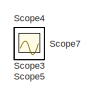
[diagram: root canvas - part 1/2, top left region]
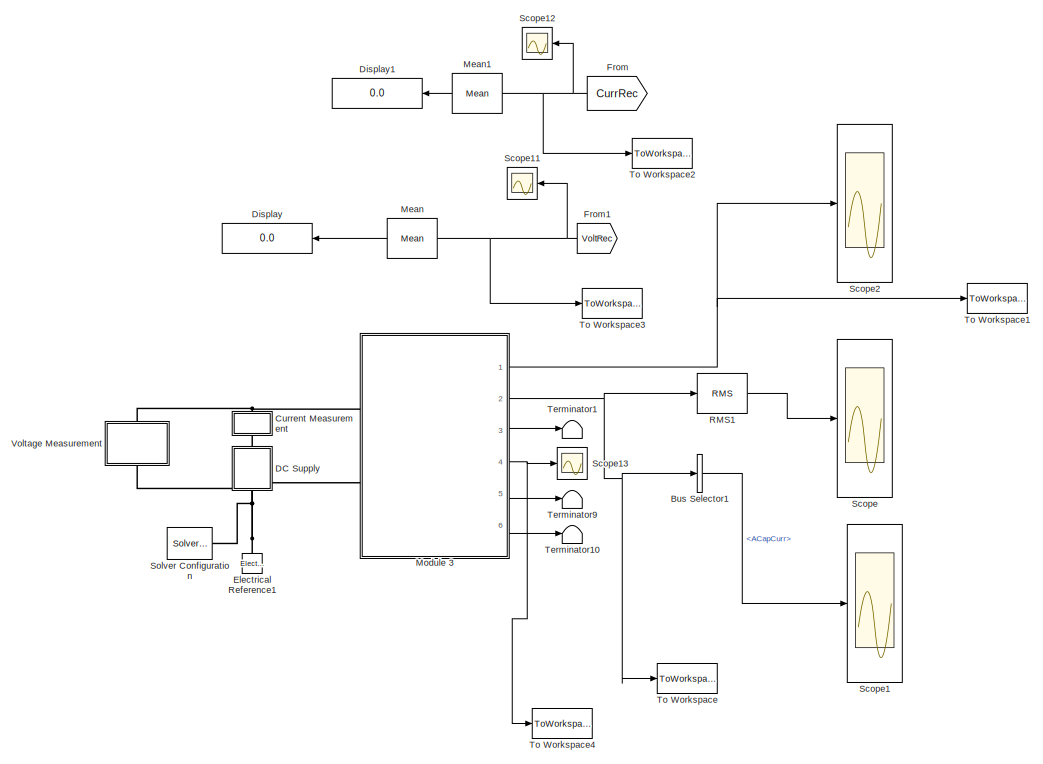
[diagram: root canvas - part 2/2, bottom right region]
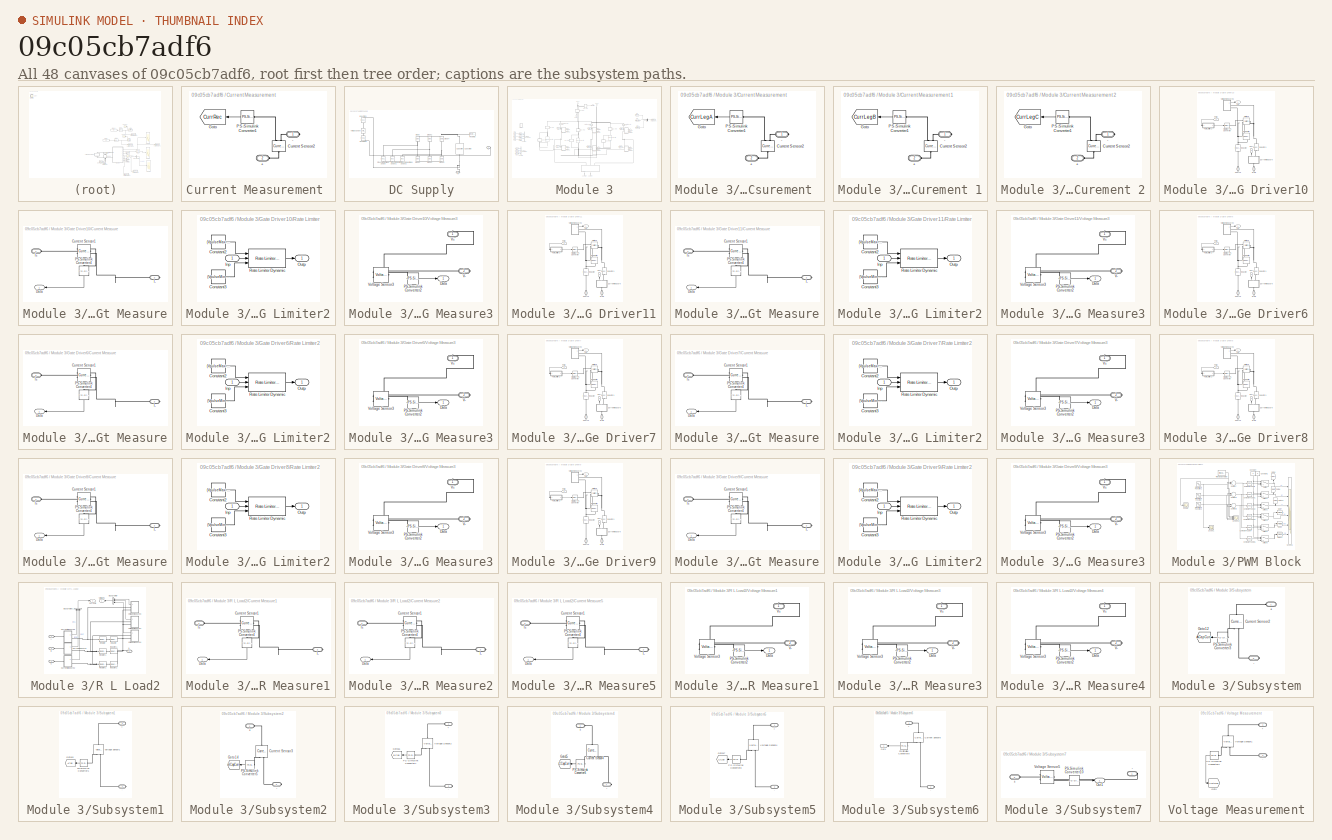
[diagram: thumbnail index - all 48 canvases of the model, root first then tree order]
MODEL slx_09c05cb7adf6
KIND model
CONFIG AbsTol = auto
CONFIG EnableMultiTasking = off
CONFIG FixedStep = SampleTime*1e-2
CONFIG MaxStep = auto
CONFIG MinStep = SampleTime*1e-2
CONFIG RelTol = 1e-3
CONFIG SampleTimeConstraint = Unconstrained
CONFIG Solver = FixedStepAuto
CONFIG SolverName = FixedStepAuto
CONFIG StartTime = 0.0
CONFIG StopTime = Tfinal
BLOCK [BusSelector] Bus Selector1
  OutputAsBus = off
  OutputSignals = ACapCurr
  Ports = [1, 1]
BLOCK [SubSystem] Current Measurement 
  Ports = [0, 0, 0, 0, 0, 1, 1]
  RequestExecContextInheritance = off
BLOCK [PMIOPort] Current Measurement /+
  Port = 2
  Side = Left
BLOCK [PMIOPort] Current Measurement /-
  Side = Right
BLOCK [Reference] Current Measurement /Current Sensor2  REF=fl_lib/Electrical/Electrical Sensors/Current Sensor
  Ports = [0, 0, 0, 0, 0, 1, 2]
  SourceBlock = fl_lib/Electrical/Electrical Sensors/Current Sensor
  SourceProductBaseCode = SS
  SourceProductName = Simscape
  SourceType = Current Sensor
BLOCK [Goto] Current Measurement /Goto
  GotoTag = CurrRec
  TagVisibility = global
BLOCK [Reference] Current Measurement /PS-Simulink Converter1  REF=nesl_utility/PS-Simulink
Converter
  Ports = [0, 1, 0, 0, 0, 1]
  SourceBlock = nesl_utility/PS-Simulink\nConverter
  SourceProductBaseCode = SS
  SourceProductName = Simscape
  SourceType = PS-Simulink\nConverter
BLOCK [SubSystem] DC Supply
  Ports = [0, 0, 0, 0, 0, 1, 1]
  RequestExecContextInheritance = off
BLOCK [Reference] DC Supply/Capacitor3  REF=elec_lib/Passive Devices/Capacitor
  Commented = on
  Ports = [0, 0, 0, 0, 0, 1, 1]
  SourceBlock = elec_lib/Passive Devices/Capacitor
  SourceProductBaseCode = SN
  SourceProductName = Simscape Electronics
  SourceType = Capacitor
BLOCK [Reference] DC Supply/Diode  REF=elec_lib/Semiconductor
Devices/Diode
  Commented = on
  Ports = [0, 0, 0, 0, 0, 1, 1]
  SourceBlock = elec_lib/Semiconductor\nDevices/Diode
  SourceProductBaseCode = SN
  SourceProductName = Simscape Electronics
  SourceType = Diode
BLOCK [Reference] DC Supply/Diode1  REF=elec_lib/Semiconductor
Devices/Diode
  Commented = on
  Ports = [0, 0, 0, 0, 0, 1, 1]
  SourceBlock = elec_lib/Semiconductor\nDevices/Diode
  SourceProductBaseCode = SN
  SourceProductName = Simscape Electronics
  SourceType = Diode
BLOCK [Reference] DC Supply/Diode2  REF=elec_lib/Semiconductor
Devices/Diode
  Commented = on
  Ports = [0, 0, 0, 0, 0, 1, 1]
  SourceBlock = elec_lib/Semiconductor\nDevices/Diode
  SourceProductBaseCode = SN
  SourceProductName = Simscape Electronics
  SourceType = Diode
BLOCK [Reference] DC Supply/Diode3  REF=elec_lib/Semiconductor
Devices/Diode
  Commented = on
  Ports = [0, 0, 0, 0, 0, 1, 1]
  SourceBlock = elec_lib/Semiconductor\nDevices/Diode
  SourceProductBaseCode = SN
  SourceProductName = Simscape Electronics
  SourceType = Diode
BLOCK [Reference] DC Supply/Diode4  REF=elec_lib/Semiconductor
Devices/Diode
  Commented = on
  Ports = [0, 0, 0, 0, 0, 1, 1]
  SourceBlock = elec_lib/Semiconductor\nDevices/Diode
  SourceProductBaseCode = SN
  SourceProductName = Simscape Electronics
  SourceType = Diode
BLOCK [Reference] DC Supply/Diode5  REF=elec_lib/Semiconductor
Devices/Diode
  Commented = on
  Ports = [0, 0, 0, 0, 0, 1, 1]
  SourceBlock = elec_lib/Semiconductor\nDevices/Diode
  SourceProductBaseCode = SN
  SourceProductName = Simscape Electronics
  SourceType = Diode
BLOCK [Reference] DC Supply/Inductor21  REF=elec_lib/Passive Devices/Inductor
  Ports = [0, 0, 0, 0, 0, 1, 1]
  SourceBlock = elec_lib/Passive Devices/Inductor
  SourceProductBaseCode = SN
  SourceProductName = Simscape Electronics
  SourceType = Inductor
BLOCK [PMIOPort] DC Supply/N
  Side = Left
BLOCK [PMIOPort] DC Supply/P
  Port = 2
  Side = Right
BLOCK [Reference] DC Supply/Resistor1  REF=elec_lib/Passive Devices/Resistor
  Commented = on
  Ports = [0, 0, 0, 0, 0, 1, 1]
  SourceBlock = elec_lib/Passive Devices/Resistor
  SourceProductBaseCode = SN
  SourceProductName = Simscape Electronics
  SourceType = Resistor
BLOCK [Reference] DC Supply/Resistor18  REF=elec_lib/Passive Devices/Resistor
  Ports = [0, 0, 0, 0, 0, 1, 1]
  SourceBlock = elec_lib/Passive Devices/Resistor
  SourceProductBaseCode = SN
  SourceProductName = Simscape Electronics
  SourceType = Resistor
BLOCK [Reference] DC Supply/Sinusoidal Voltage Source  REF=elec_lib/Additional
Components/SPICE-Compatible
Components/Sources/Sinusoidal Voltage
Source
  Commented = on
  Ports = [0, 0, 0, 0, 0, 1, 1]
  SourceBlock = elec_lib/Additional\nComponents/SPICE-Compatible\nComponents/Sources/Sinusoidal Voltage\nSource
  SourceProductBaseCode = SN
  SourceProductName = Simscape Electronics
  SourceType = Sinusoidal Voltage\nSource
BLOCK [Reference] DC Supply/Sinusoidal Voltage Source1  REF=elec_lib/Additional
Components/SPICE-Compatible
Components/Sources/Sinusoidal Voltage
Source
  Commented = on
  Ports = [0, 0, 0, 0, 0, 1, 1]
  SourceBlock = elec_lib/Additional\nComponents/SPICE-Compatible\nComponents/Sources/Sinusoidal Voltage\nSource
  SourceProductBaseCode = SN
  SourceProductName = Simscape Electronics
  SourceType = Sinusoidal Voltage\nSource
BLOCK [Reference] DC Supply/Sinusoidal Voltage Source2  REF=elec_lib/Additional
Components/SPICE-Compatible
Components/Sources/Sinusoidal Voltage
Source
  Commented = on
  Ports = [0, 0, 0, 0, 0, 1, 1]
  SourceBlock = elec_lib/Additional\nComponents/SPICE-Compatible\nComponents/Sources/Sinusoidal Voltage\nSource
  SourceProductBaseCode = SN
  SourceProductName = Simscape Electronics
  SourceType = Sinusoidal Voltage\nSource
BLOCK [Reference] DC Supply/Voltage Source  REF=elec_lib/Sources/Voltage Source
  Ports = [0, 0, 0, 0, 0, 1, 1]
  SourceBlock = elec_lib/Sources/Voltage Source
  SourceProductBaseCode = SN
  SourceProductName = Simscape Electronics
  SourceType = Voltage Source
BLOCK [Display] Display
  Decimation = 1
  Ports = [1]
BLOCK [Display] Display1
  Decimation = 1
  Ports = [1]
BLOCK [Reference] Electrical Reference1  REF=fl_lib/Electrical/Electrical Elements/Electrical Reference
  Ports = [0, 0, 0, 0, 0, 1]
  SourceBlock = fl_lib/Electrical/Electrical Elements/Electrical Reference
  SourceProductBaseCode = SS
  SourceProductName = Simscape
  SourceType = Electrical Reference
BLOCK [From] From
  GotoTag = CurrRec
  TagVisibility = global
BLOCK [From] From1
  GotoTag = VoltRec
  TagVisibility = global
BLOCK [Reference] Mean  REF=powerlib_meascontrol/Measurements/Mean
  Ports = [1, 1]
  SourceBlock = powerlib_meascontrol/Measurements/Mean
  SourceProductBaseCode = PS
  SourceProductName = Simscape Power Systems
  SourceType = Mean
BLOCK [Reference] Mean1  REF=powerlib_meascontrol/Measurements/Mean
  Ports = [1, 1]
  SourceBlock = powerlib_meascontrol/Measurements/Mean
  SourceProductBaseCode = PS
  SourceProductName = Simscape Power Systems
  SourceType = Mean
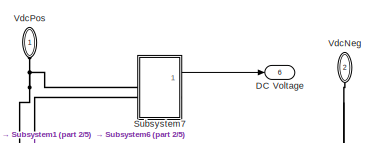
[diagram: Module 3 - part 1/5, top center region]
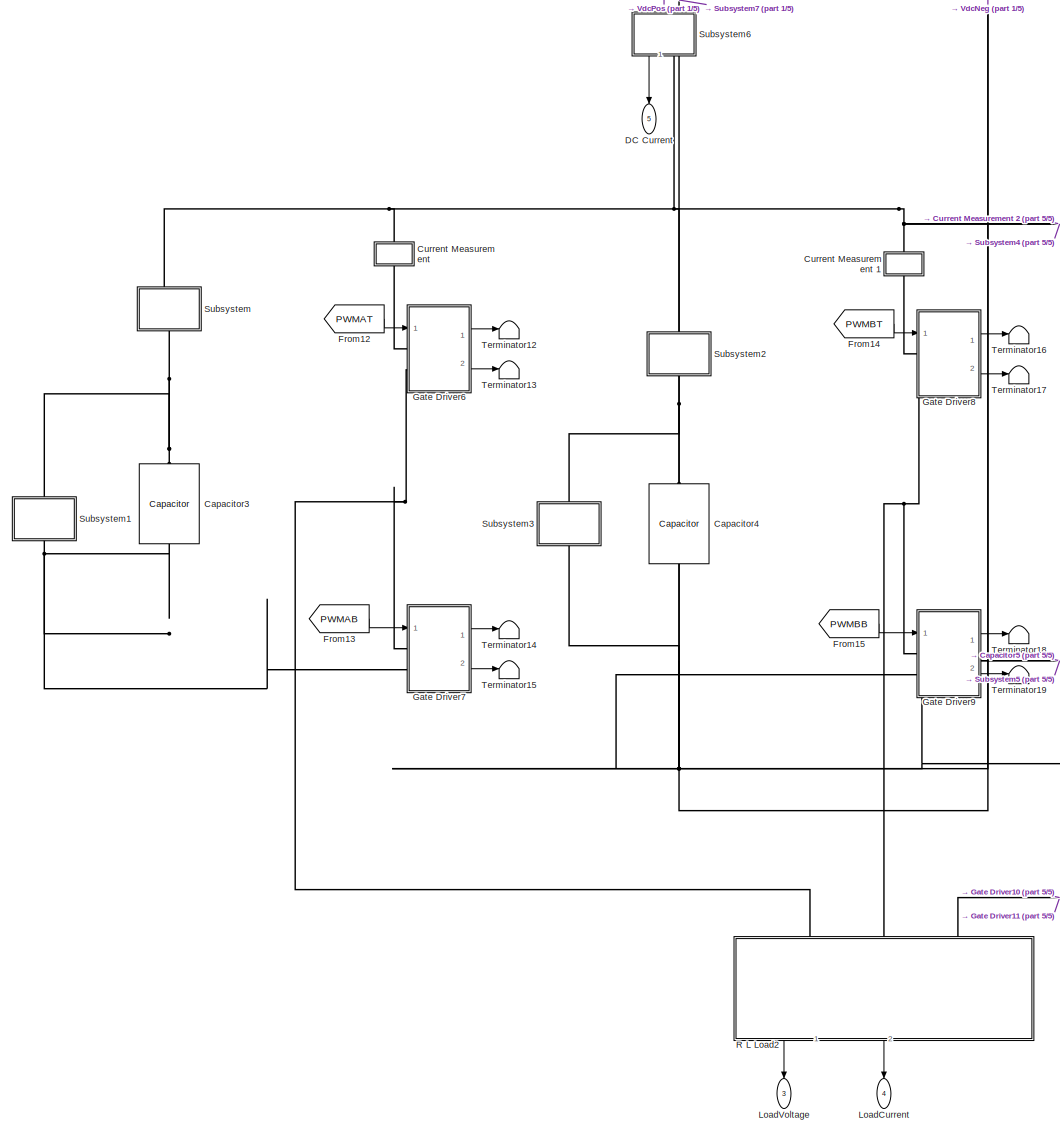
[diagram: Module 3 - part 2/5, center side, full height]
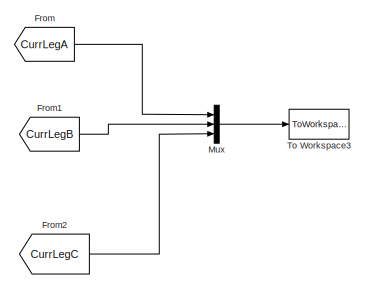
[diagram: Module 3 - part 3/5, top right region]
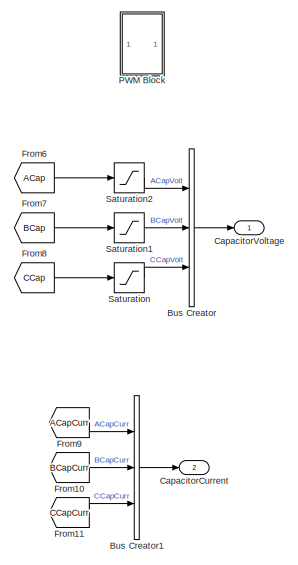
[diagram: Module 3 - part 4/5, middle left region]
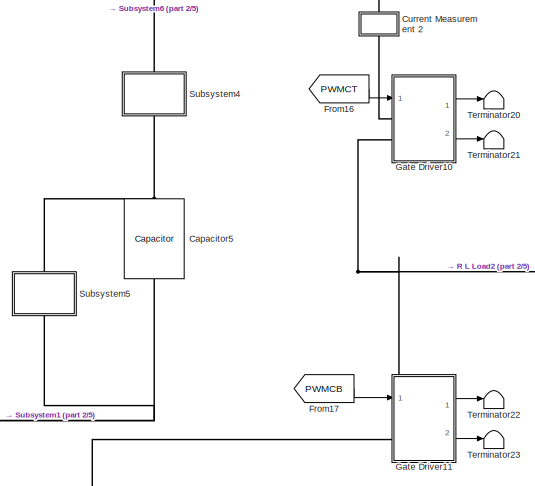
[diagram: Module 3 - part 5/5, middle right region]
BLOCK [SubSystem] Module 3
  Ports = [0, 6, 0, 0, 0, 2]
  RequestExecContextInheritance = off
BLOCK [BusCreator] Module 3/Bus Creator
  DisplayOption = bar
  InheritFromInputs = on
  Inputs = 3
  Ports = [3, 1]
BLOCK [BusCreator] Module 3/Bus Creator1
  DisplayOption = bar
  InheritFromInputs = on
  Inputs = 3
  Ports = [3, 1]
BLOCK [Reference] Module 3/Capacitor3  REF=elec_lib/Passive Devices/Capacitor
  Ports = [0, 0, 0, 0, 0, 1, 1]
  SourceBlock = elec_lib/Passive Devices/Capacitor
  SourceProductBaseCode = SN
  SourceProductName = Simscape Electronics
  SourceType = Capacitor
BLOCK [Reference] Module 3/Capacitor4  REF=elec_lib/Passive Devices/Capacitor
  Ports = [0, 0, 0, 0, 0, 1, 1]
  SourceBlock = elec_lib/Passive Devices/Capacitor
  SourceProductBaseCode = SN
  SourceProductName = Simscape Electronics
  SourceType = Capacitor
BLOCK [Reference] Module 3/Capacitor5  REF=elec_lib/Passive Devices/Capacitor
  Ports = [0, 0, 0, 0, 0, 1, 1]
  SourceBlock = elec_lib/Passive Devices/Capacitor
  SourceProductBaseCode = SN
  SourceProductName = Simscape Electronics
  SourceType = Capacitor
BLOCK [Outport] Module 3/CapacitorCurrent
  IconDisplay = Port number
  Port = 2
BLOCK [Outport] Module 3/CapacitorVoltage
  IconDisplay = Port number
BLOCK [SubSystem] Module 3/Current Measurement 
  Ports = [0, 0, 0, 0, 0, 1, 1]
  RequestExecContextInheritance = off
BLOCK [PMIOPort] Module 3/Current Measurement /+
  Port = 2
  Side = Left
BLOCK [PMIOPort] Module 3/Current Measurement /-
  Side = Right
BLOCK [Reference] Module 3/Current Measurement /Current Sensor2  REF=fl_lib/Electrical/Electrical Sensors/Current Sensor
  Ports = [0, 0, 0, 0, 0, 1, 2]
  SourceBlock = fl_lib/Electrical/Electrical Sensors/Current Sensor
  SourceProductBaseCode = SS
  SourceProductName = Simscape
  SourceType = Current Sensor
BLOCK [Goto] Module 3/Current Measurement /Goto
  GotoTag = CurrLegA
  TagVisibility = global
BLOCK [Reference] Module 3/Current Measurement /PS-Simulink Converter1  REF=nesl_utility/PS-Simulink
Converter
  Ports = [0, 1, 0, 0, 0, 1]
  SourceBlock = nesl_utility/PS-Simulink\nConverter
  SourceProductBaseCode = SS
  SourceProductName = Simscape
  SourceType = PS-Simulink\nConverter
BLOCK [SubSystem] Module 3/Current Measurement 1
  Ports = [0, 0, 0, 0, 0, 1, 1]
  RequestExecContextInheritance = off
BLOCK [PMIOPort] Module 3/Current Measurement 1/+
  Port = 2
  Side = Left
BLOCK [PMIOPort] Module 3/Current Measurement 1/-
  Side = Right
BLOCK [Reference] Module 3/Current Measurement 1/Current Sensor2  REF=fl_lib/Electrical/Electrical Sensors/Current Sensor
  Ports = [0, 0, 0, 0, 0, 1, 2]
  SourceBlock = fl_lib/Electrical/Electrical Sensors/Current Sensor
  SourceProductBaseCode = SS
  SourceProductName = Simscape
  SourceType = Current Sensor
BLOCK [Goto] Module 3/Current Measurement 1/Goto
  GotoTag = CurrLegB
  TagVisibility = global
BLOCK [Reference] Module 3/Current Measurement 1/PS-Simulink Converter1  REF=nesl_utility/PS-Simulink
Converter
  Ports = [0, 1, 0, 0, 0, 1]
  SourceBlock = nesl_utility/PS-Simulink\nConverter
  SourceProductBaseCode = SS
  SourceProductName = Simscape
  SourceType = PS-Simulink\nConverter
BLOCK [SubSystem] Module 3/Current Measurement 2
  Ports = [0, 0, 0, 0, 0, 1, 1]
  RequestExecContextInheritance = off
BLOCK [PMIOPort] Module 3/Current Measurement 2/+
  Port = 2
  Side = Left
BLOCK [PMIOPort] Module 3/Current Measurement 2/-
  Side = Right
BLOCK [Reference] Module 3/Current Measurement 2/Current Sensor2  REF=fl_lib/Electrical/Electrical Sensors/Current Sensor
  Ports = [0, 0, 0, 0, 0, 1, 2]
  SourceBlock = fl_lib/Electrical/Electrical Sensors/Current Sensor
  SourceProductBaseCode = SS
  SourceProductName = Simscape
  SourceType = Current Sensor
BLOCK [Goto] Module 3/Current Measurement 2/Goto
  GotoTag = CurrLegC
  TagVisibility = global
BLOCK [Reference] Module 3/Current Measurement 2/PS-Simulink Converter1  REF=nesl_utility/PS-Simulink
Converter
  Ports = [0, 1, 0, 0, 0, 1]
  SourceBlock = nesl_utility/PS-Simulink\nConverter
  SourceProductBaseCode = SS
  SourceProductName = Simscape
  SourceType = PS-Simulink\nConverter
BLOCK [Outport] Module 3/DC Current
  IconDisplay = Port number
  Port = 5
BLOCK [Outport] Module 3/DC Voltage
  IconDisplay = Port number
  Port = 6
BLOCK [From] Module 3/From
  GotoTag = CurrLegA
  TagVisibility = global
BLOCK [From] Module 3/From1
  GotoTag = CurrLegB
  TagVisibility = global
BLOCK [From] Module 3/From10
  GotoTag = BCapCurr
  TagVisibility = global
BLOCK [From] Module 3/From11
  GotoTag = CCapCurr
  TagVisibility = global
BLOCK [From] Module 3/From12
  GotoTag = PWMAT
  TagVisibility = global
BLOCK [From] Module 3/From13
  GotoTag = PWMAB
  TagVisibility = global
BLOCK [From] Module 3/From14
  GotoTag = PWMBT
  TagVisibility = global
BLOCK [From] Module 3/From15
  GotoTag = PWMBB
  TagVisibility = global
BLOCK [From] Module 3/From16
  GotoTag = PWMCT
  TagVisibility = global
BLOCK [From] Module 3/From17
  GotoTag = PWMCB
  TagVisibility = global
BLOCK [From] Module 3/From2
  GotoTag = CurrLegC
  TagVisibility = global
BLOCK [From] Module 3/From6
  GotoTag = ACap
  TagVisibility = global
BLOCK [From] Module 3/From7
  GotoTag = BCap
  TagVisibility = global
BLOCK [From] Module 3/From8
  GotoTag = CCap
  TagVisibility = global
BLOCK [From] Module 3/From9
  GotoTag = ACapCurr
  TagVisibility = global
BLOCK [SubSystem] Module 3/Gate Driver10
  Ports = [1, 2, 0, 0, 0, 2]
  RequestExecContextInheritance = off
BLOCK [Reference] Module 3/Gate Driver10/Capacitor  REF=elec_lib/Passive Devices/Capacitor
  Ports = [0, 0, 0, 0, 0, 1, 1]
  SourceBlock = elec_lib/Passive Devices/Capacitor
  SourceProductBaseCode = SN
  SourceProductName = Simscape Electronics
  SourceType = Capacitor
BLOCK [Outport] Module 3/Gate Driver10/Curr
  IconDisplay = Port number
  Port = 2
BLOCK [SubSystem] Module 3/Gate Driver10/Current Measure
  Ports = [0, 1, 0, 0, 0, 1, 1]
  RequestExecContextInheritance = off
BLOCK [Reference] Module 3/Gate Driver10/Current Measure/Current Sensor1  REF=fl_lib/Electrical/Electrical Sensors/Current Sensor
  Ports = [0, 0, 0, 0, 0, 1, 2]
  SourceBlock = fl_lib/Electrical/Electrical Sensors/Current Sensor
  SourceProductBaseCode = SS
  SourceProductName = Simscape
  SourceType = Current Sensor
BLOCK [Outport] Module 3/Gate Driver10/Current Measure/Data
  IconDisplay = Port number
BLOCK [PMIOPort] Module 3/Gate Driver10/Current Measure/I+
  Side = Left
BLOCK [PMIOPort] Module 3/Gate Driver10/Current Measure/I-
  Port = 2
  Side = Right
BLOCK [Reference] Module 3/Gate Driver10/Current Measure/PS-Simulink Converter4  REF=nesl_utility/PS-Simulink
Converter
  Ports = [0, 1, 0, 0, 0, 1]
  SourceBlock = nesl_utility/PS-Simulink\nConverter
  SourceProductBaseCode = SS
  SourceProductName = Simscape
  SourceType = PS-Simulink\nConverter
BLOCK [PMIOPort] Module 3/Gate Driver10/Drain
  Side = Left
BLOCK [Reference] Module 3/Gate Driver10/Inductor  REF=elec_lib/Passive Devices/Inductor
  Ports = [0, 0, 0, 0, 0, 1, 1]
  SourceBlock = elec_lib/Passive Devices/Inductor
  SourceProductBaseCode = SN
  SourceProductName = Simscape Electronics
  SourceType = Inductor
BLOCK [Reference] Module 3/Gate Driver10/Inductor1  REF=elec_lib/Passive Devices/Inductor
  Ports = [0, 0, 0, 0, 0, 1, 1]
  SourceBlock = elec_lib/Passive Devices/Inductor
  SourceProductBaseCode = SN
  SourceProductName = Simscape Electronics
  SourceType = Inductor
BLOCK [Inport] Module 3/Gate Driver10/PWM
  IconDisplay = Port number
BLOCK [SubSystem] Module 3/Gate Driver10/Rate Limiter2
  Ports = [1, 1]
  RequestExecContextInheritance = off
BLOCK [Constant] Module 3/Gate Driver10/Rate Limiter2/Constant2
  Value = (VpulseMax - VpulseMin)/1e-9
BLOCK [Constant] Module 3/Gate Driver10/Rate Limiter2/Constant3
  Value = (VpulseMin - VpulseMax)/1e-9
BLOCK [Inport] Module 3/Gate Driver10/Rate Limiter2/Inp
  IconDisplay = Port number
BLOCK [Outport] Module 3/Gate Driver10/Rate Limiter2/Outp
  IconDisplay = Port number
BLOCK [Reference] Module 3/Gate Driver10/Rate Limiter2/Rate Limiter Dynamic  REF=simulink/Discontinuities/Rate Limiter
Dynamic
  Ports = [3, 1]
  SourceBlock = simulink/Discontinuities/Rate Limiter\nDynamic
  SourceProductBaseCode = SL
  SourceProductName = Simulink
  SourceType = Rate Limiter Dynamic
BLOCK [Reference] Module 3/Gate Driver10/Simulink-PS Converter  REF=nesl_utility/Simulink-PS
Converter
  Ports = [1, 0, 0, 0, 0, 0, 1]
  SourceBlock = nesl_utility/Simulink-PS\nConverter
  SourceProductBaseCode = SS
  SourceProductName = Simscape
  SourceType = Simulink-PS\nConverter
BLOCK [PMIOPort] Module 3/Gate Driver10/Source
  Port = 2
  Side = Left
BLOCK [Reference] Module 3/Gate Driver10/Switch6  REF=fl_lib/Electrical/Electrical Elements/Switch
  Ports = [0, 0, 0, 0, 0, 1, 2]
  SourceBlock = fl_lib/Electrical/Electrical Elements/Switch
  SourceProductBaseCode = SS
  SourceProductName = Simscape
  SourceType = Switch
BLOCK [Outport] Module 3/Gate Driver10/Volt
  IconDisplay = Port number
BLOCK [SubSystem] Module 3/Gate Driver10/Voltage Measure3
  Ports = [0, 1, 0, 0, 0, 0, 2]
  RequestExecContextInheritance = off
BLOCK [Outport] Module 3/Gate Driver10/Voltage Measure3/Data
  IconDisplay = Port number
BLOCK [Reference] Module 3/Gate Driver10/Voltage Measure3/PS-Simulink Converter2  REF=nesl_utility/PS-Simulink
Converter
  Ports = [0, 1, 0, 0, 0, 1]
  SourceBlock = nesl_utility/PS-Simulink\nConverter
  SourceProductBaseCode = SS
  SourceProductName = Simscape
  SourceType = PS-Simulink\nConverter
BLOCK [PMIOPort] Module 3/Gate Driver10/Voltage Measure3/V+
  Side = Right
BLOCK [PMIOPort] Module 3/Gate Driver10/Voltage Measure3/V-
  Port = 2
  Side = Right
BLOCK [Reference] Module 3/Gate Driver10/Voltage Measure3/Voltage Sensor3  REF=fl_lib/Electrical/Electrical Sensors/Voltage Sensor
  Ports = [0, 0, 0, 0, 0, 1, 2]
  SourceBlock = fl_lib/Electrical/Electrical Sensors/Voltage Sensor
  SourceProductBaseCode = SS
  SourceProductName = Simscape
  SourceType = Voltage Sensor
BLOCK [SubSystem] Module 3/Gate Driver11
  Ports = [1, 2, 0, 0, 0, 2]
  RequestExecContextInheritance = off
BLOCK [Reference] Module 3/Gate Driver11/Capacitor  REF=elec_lib/Passive Devices/Capacitor
  Ports = [0, 0, 0, 0, 0, 1, 1]
  SourceBlock = elec_lib/Passive Devices/Capacitor
  SourceProductBaseCode = SN
  SourceProductName = Simscape Electronics
  SourceType = Capacitor
BLOCK [Outport] Module 3/Gate Driver11/Curr
  IconDisplay = Port number
  Port = 2
BLOCK [SubSystem] Module 3/Gate Driver11/Current Measure
  Ports = [0, 1, 0, 0, 0, 1, 1]
  RequestExecContextInheritance = off
BLOCK [Reference] Module 3/Gate Driver11/Current Measure/Current Sensor1  REF=fl_lib/Electrical/Electrical Sensors/Current Sensor
  Ports = [0, 0, 0, 0, 0, 1, 2]
  SourceBlock = fl_lib/Electrical/Electrical Sensors/Current Sensor
  SourceProductBaseCode = SS
  SourceProductName = Simscape
  SourceType = Current Sensor
BLOCK [Outport] Module 3/Gate Driver11/Current Measure/Data
  IconDisplay = Port number
BLOCK [PMIOPort] Module 3/Gate Driver11/Current Measure/I+
  Side = Left
BLOCK [PMIOPort] Module 3/Gate Driver11/Current Measure/I-
  Port = 2
  Side = Right
BLOCK [Reference] Module 3/Gate Driver11/Current Measure/PS-Simulink Converter4  REF=nesl_utility/PS-Simulink
Converter
  Ports = [0, 1, 0, 0, 0, 1]
  SourceBlock = nesl_utility/PS-Simulink\nConverter
  SourceProductBaseCode = SS
  SourceProductName = Simscape
  SourceType = PS-Simulink\nConverter
BLOCK [PMIOPort] Module 3/Gate Driver11/Drain
  Side = Left
BLOCK [Reference] Module 3/Gate Driver11/Inductor  REF=elec_lib/Passive Devices/Inductor
  Ports = [0, 0, 0, 0, 0, 1, 1]
  SourceBlock = elec_lib/Passive Devices/Inductor
  SourceProductBaseCode = SN
  SourceProductName = Simscape Electronics
  SourceType = Inductor
BLOCK [Reference] Module 3/Gate Driver11/Inductor1  REF=elec_lib/Passive Devices/Inductor
  Ports = [0, 0, 0, 0, 0, 1, 1]
  SourceBlock = elec_lib/Passive Devices/Inductor
  SourceProductBaseCode = SN
  SourceProductName = Simscape Electronics
  SourceType = Inductor
BLOCK [Inport] Module 3/Gate Driver11/PWM
  IconDisplay = Port number
BLOCK [SubSystem] Module 3/Gate Driver11/Rate Limiter2
  Ports = [1, 1]
  RequestExecContextInheritance = off
BLOCK [Constant] Module 3/Gate Driver11/Rate Limiter2/Constant2
  Value = (VpulseMax - VpulseMin)/1e-9
BLOCK [Constant] Module 3/Gate Driver11/Rate Limiter2/Constant3
  Value = (VpulseMin - VpulseMax)/1e-9
BLOCK [Inport] Module 3/Gate Driver11/Rate Limiter2/Inp
  IconDisplay = Port number
BLOCK [Outport] Module 3/Gate Driver11/Rate Limiter2/Outp
  IconDisplay = Port number
BLOCK [Reference] Module 3/Gate Driver11/Rate Limiter2/Rate Limiter Dynamic  REF=simulink/Discontinuities/Rate Limiter
Dynamic
  Ports = [3, 1]
  SourceBlock = simulink/Discontinuities/Rate Limiter\nDynamic
  SourceProductBaseCode = SL
  SourceProductName = Simulink
  SourceType = Rate Limiter Dynamic
BLOCK [Reference] Module 3/Gate Driver11/Simulink-PS Converter  REF=nesl_utility/Simulink-PS
Converter
  Ports = [1, 0, 0, 0, 0, 0, 1]
  SourceBlock = nesl_utility/Simulink-PS\nConverter
  SourceProductBaseCode = SS
  SourceProductName = Simscape
  SourceType = Simulink-PS\nConverter
BLOCK [PMIOPort] Module 3/Gate Driver11/Source
  Port = 2
  Side = Left
BLOCK [Reference] Module 3/Gate Driver11/Switch6  REF=fl_lib/Electrical/Electrical Elements/Switch
  Ports = [0, 0, 0, 0, 0, 1, 2]
  SourceBlock = fl_lib/Electrical/Electrical Elements/Switch
  SourceProductBaseCode = SS
  SourceProductName = Simscape
  SourceType = Switch
BLOCK [Outport] Module 3/Gate Driver11/Volt
  IconDisplay = Port number
BLOCK [SubSystem] Module 3/Gate Driver11/Voltage Measure3
  Ports = [0, 1, 0, 0, 0, 0, 2]
  RequestExecContextInheritance = off
BLOCK [Outport] Module 3/Gate Driver11/Voltage Measure3/Data
  IconDisplay = Port number
BLOCK [Reference] Module 3/Gate Driver11/Voltage Measure3/PS-Simulink Converter2  REF=nesl_utility/PS-Simulink
Converter
  Ports = [0, 1, 0, 0, 0, 1]
  SourceBlock = nesl_utility/PS-Simulink\nConverter
  SourceProductBaseCode = SS
  SourceProductName = Simscape
  SourceType = PS-Simulink\nConverter
BLOCK [PMIOPort] Module 3/Gate Driver11/Voltage Measure3/V+
  Side = Right
BLOCK [PMIOPort] Module 3/Gate Driver11/Voltage Measure3/V-
  Port = 2
  Side = Right
BLOCK [Reference] Module 3/Gate Driver11/Voltage Measure3/Voltage Sensor3  REF=fl_lib/Electrical/Electrical Sensors/Voltage Sensor
  Ports = [0, 0, 0, 0, 0, 1, 2]
  SourceBlock = fl_lib/Electrical/Electrical Sensors/Voltage Sensor
  SourceProductBaseCode = SS
  SourceProductName = Simscape
  SourceType = Voltage Sensor
BLOCK [SubSystem] Module 3/Gate Driver6
  Ports = [1, 2, 0, 0, 0, 2]
  RequestExecContextInheritance = off
BLOCK [Reference] Module 3/Gate Driver6/Capacitor  REF=elec_lib/Passive Devices/Capacitor
  Ports = [0, 0, 0, 0, 0, 1, 1]
  SourceBlock = elec_lib/Passive Devices/Capacitor
  SourceProductBaseCode = SN
  SourceProductName = Simscape Electronics
  SourceType = Capacitor
BLOCK [Outport] Module 3/Gate Driver6/Curr
  IconDisplay = Port number
  Port = 2
BLOCK [SubSystem] Module 3/Gate Driver6/Current Measure
  Ports = [0, 1, 0, 0, 0, 1, 1]
  RequestExecContextInheritance = off
BLOCK [Reference] Module 3/Gate Driver6/Current Measure/Current Sensor1  REF=fl_lib/Electrical/Electrical Sensors/Current Sensor
  Ports = [0, 0, 0, 0, 0, 1, 2]
  SourceBlock = fl_lib/Electrical/Electrical Sensors/Current Sensor
  SourceProductBaseCode = SS
  SourceProductName = Simscape
  SourceType = Current Sensor
BLOCK [Outport] Module 3/Gate Driver6/Current Measure/Data
  IconDisplay = Port number
BLOCK [PMIOPort] Module 3/Gate Driver6/Current Measure/I+
  Side = Left
BLOCK [PMIOPort] Module 3/Gate Driver6/Current Measure/I-
  Port = 2
  Side = Right
BLOCK [Reference] Module 3/Gate Driver6/Current Measure/PS-Simulink Converter4  REF=nesl_utility/PS-Simulink
Converter
  Ports = [0, 1, 0, 0, 0, 1]
  SourceBlock = nesl_utility/PS-Simulink\nConverter
  SourceProductBaseCode = SS
  SourceProductName = Simscape
  SourceType = PS-Simulink\nConverter
BLOCK [PMIOPort] Module 3/Gate Driver6/Drain
  Side = Left
BLOCK [Reference] Module 3/Gate Driver6/Inductor  REF=elec_lib/Passive Devices/Inductor
  Ports = [0, 0, 0, 0, 0, 1, 1]
  SourceBlock = elec_lib/Passive Devices/Inductor
  SourceProductBaseCode = SN
  SourceProductName = Simscape Electronics
  SourceType = Inductor
BLOCK [Reference] Module 3/Gate Driver6/Inductor1  REF=elec_lib/Passive Devices/Inductor
  Ports = [0, 0, 0, 0, 0, 1, 1]
  SourceBlock = elec_lib/Passive Devices/Inductor
  SourceProductBaseCode = SN
  SourceProductName = Simscape Electronics
  SourceType = Inductor
BLOCK [Inport] Module 3/Gate Driver6/PWM
  IconDisplay = Port number
BLOCK [SubSystem] Module 3/Gate Driver6/Rate Limiter2
  Ports = [1, 1]
  RequestExecContextInheritance = off
BLOCK [Constant] Module 3/Gate Driver6/Rate Limiter2/Constant2
  Value = (VpulseMax - VpulseMin)/1e-9
BLOCK [Constant] Module 3/Gate Driver6/Rate Limiter2/Constant3
  Value = (VpulseMin - VpulseMax)/1e-9
BLOCK [Inport] Module 3/Gate Driver6/Rate Limiter2/Inp
  IconDisplay = Port number
BLOCK [Outport] Module 3/Gate Driver6/Rate Limiter2/Outp
  IconDisplay = Port number
BLOCK [Reference] Module 3/Gate Driver6/Rate Limiter2/Rate Limiter Dynamic  REF=simulink/Discontinuities/Rate Limiter
Dynamic
  Ports = [3, 1]
  SourceBlock = simulink/Discontinuities/Rate Limiter\nDynamic
  SourceProductBaseCode = SL
  SourceProductName = Simulink
  SourceType = Rate Limiter Dynamic
BLOCK [Reference] Module 3/Gate Driver6/Simulink-PS Converter  REF=nesl_utility/Simulink-PS
Converter
  Ports = [1, 0, 0, 0, 0, 0, 1]
  SourceBlock = nesl_utility/Simulink-PS\nConverter
  SourceProductBaseCode = SS
  SourceProductName = Simscape
  SourceType = Simulink-PS\nConverter
BLOCK [PMIOPort] Module 3/Gate Driver6/Source
  Port = 2
  Side = Left
BLOCK [Reference] Module 3/Gate Driver6/Switch6  REF=fl_lib/Electrical/Electrical Elements/Switch
  Ports = [0, 0, 0, 0, 0, 1, 2]
  SourceBlock = fl_lib/Electrical/Electrical Elements/Switch
  SourceProductBaseCode = SS
  SourceProductName = Simscape
  SourceType = Switch
BLOCK [Outport] Module 3/Gate Driver6/Volt
  IconDisplay = Port number
BLOCK [SubSystem] Module 3/Gate Driver6/Voltage Measure3
  Ports = [0, 1, 0, 0, 0, 0, 2]
  RequestExecContextInheritance = off
BLOCK [Outport] Module 3/Gate Driver6/Voltage Measure3/Data
  IconDisplay = Port number
BLOCK [Reference] Module 3/Gate Driver6/Voltage Measure3/PS-Simulink Converter2  REF=nesl_utility/PS-Simulink
Converter
  Ports = [0, 1, 0, 0, 0, 1]
  SourceBlock = nesl_utility/PS-Simulink\nConverter
  SourceProductBaseCode = SS
  SourceProductName = Simscape
  SourceType = PS-Simulink\nConverter
BLOCK [PMIOPort] Module 3/Gate Driver6/Voltage Measure3/V+
  Side = Right
BLOCK [PMIOPort] Module 3/Gate Driver6/Voltage Measure3/V-
  Port = 2
  Side = Right
BLOCK [Reference] Module 3/Gate Driver6/Voltage Measure3/Voltage Sensor3  REF=fl_lib/Electrical/Electrical Sensors/Voltage Sensor
  Ports = [0, 0, 0, 0, 0, 1, 2]
  SourceBlock = fl_lib/Electrical/Electrical Sensors/Voltage Sensor
  SourceProductBaseCode = SS
  SourceProductName = Simscape
  SourceType = Voltage Sensor
BLOCK [SubSystem] Module 3/Gate Driver7
  Ports = [1, 2, 0, 0, 0, 2]
  RequestExecContextInheritance = off
BLOCK [Reference] Module 3/Gate Driver7/Capacitor  REF=elec_lib/Passive Devices/Capacitor
  Ports = [0, 0, 0, 0, 0, 1, 1]
  SourceBlock = elec_lib/Passive Devices/Capacitor
  SourceProductBaseCode = SN
  SourceProductName = Simscape Electronics
  SourceType = Capacitor
BLOCK [Outport] Module 3/Gate Driver7/Curr
  IconDisplay = Port number
  Port = 2
BLOCK [SubSystem] Module 3/Gate Driver7/Current Measure
  Ports = [0, 1, 0, 0, 0, 1, 1]
  RequestExecContextInheritance = off
BLOCK [Reference] Module 3/Gate Driver7/Current Measure/Current Sensor1  REF=fl_lib/Electrical/Electrical Sensors/Current Sensor
  Ports = [0, 0, 0, 0, 0, 1, 2]
  SourceBlock = fl_lib/Electrical/Electrical Sensors/Current Sensor
  SourceProductBaseCode = SS
  SourceProductName = Simscape
  SourceType = Current Sensor
BLOCK [Outport] Module 3/Gate Driver7/Current Measure/Data
  IconDisplay = Port number
BLOCK [PMIOPort] Module 3/Gate Driver7/Current Measure/I+
  Side = Left
BLOCK [PMIOPort] Module 3/Gate Driver7/Current Measure/I-
  Port = 2
  Side = Right
BLOCK [Reference] Module 3/Gate Driver7/Current Measure/PS-Simulink Converter4  REF=nesl_utility/PS-Simulink
Converter
  Ports = [0, 1, 0, 0, 0, 1]
  SourceBlock = nesl_utility/PS-Simulink\nConverter
  SourceProductBaseCode = SS
  SourceProductName = Simscape
  SourceType = PS-Simulink\nConverter
BLOCK [PMIOPort] Module 3/Gate Driver7/Drain
  Side = Left
BLOCK [Reference] Module 3/Gate Driver7/Inductor  REF=elec_lib/Passive Devices/Inductor
  Ports = [0, 0, 0, 0, 0, 1, 1]
  SourceBlock = elec_lib/Passive Devices/Inductor
  SourceProductBaseCode = SN
  SourceProductName = Simscape Electronics
  SourceType = Inductor
BLOCK [Reference] Module 3/Gate Driver7/Inductor1  REF=elec_lib/Passive Devices/Inductor
  Ports = [0, 0, 0, 0, 0, 1, 1]
  SourceBlock = elec_lib/Passive Devices/Inductor
  SourceProductBaseCode = SN
  SourceProductName = Simscape Electronics
  SourceType = Inductor
BLOCK [Inport] Module 3/Gate Driver7/PWM
  IconDisplay = Port number
BLOCK [SubSystem] Module 3/Gate Driver7/Rate Limiter2
  Ports = [1, 1]
  RequestExecContextInheritance = off
BLOCK [Constant] Module 3/Gate Driver7/Rate Limiter2/Constant2
  Value = (VpulseMax - VpulseMin)/1e-9
BLOCK [Constant] Module 3/Gate Driver7/Rate Limiter2/Constant3
  Value = (VpulseMin - VpulseMax)/1e-9
BLOCK [Inport] Module 3/Gate Driver7/Rate Limiter2/Inp
  IconDisplay = Port number
BLOCK [Outport] Module 3/Gate Driver7/Rate Limiter2/Outp
  IconDisplay = Port number
BLOCK [Reference] Module 3/Gate Driver7/Rate Limiter2/Rate Limiter Dynamic  REF=simulink/Discontinuities/Rate Limiter
Dynamic
  Ports = [3, 1]
  SourceBlock = simulink/Discontinuities/Rate Limiter\nDynamic
  SourceProductBaseCode = SL
  SourceProductName = Simulink
  SourceType = Rate Limiter Dynamic
BLOCK [Reference] Module 3/Gate Driver7/Simulink-PS Converter  REF=nesl_utility/Simulink-PS
Converter
  Ports = [1, 0, 0, 0, 0, 0, 1]
  SourceBlock = nesl_utility/Simulink-PS\nConverter
  SourceProductBaseCode = SS
  SourceProductName = Simscape
  SourceType = Simulink-PS\nConverter
BLOCK [PMIOPort] Module 3/Gate Driver7/Source
  Port = 2
  Side = Left
BLOCK [Reference] Module 3/Gate Driver7/Switch6  REF=fl_lib/Electrical/Electrical Elements/Switch
  Ports = [0, 0, 0, 0, 0, 1, 2]
  SourceBlock = fl_lib/Electrical/Electrical Elements/Switch
  SourceProductBaseCode = SS
  SourceProductName = Simscape
  SourceType = Switch
BLOCK [Outport] Module 3/Gate Driver7/Volt
  IconDisplay = Port number
BLOCK [SubSystem] Module 3/Gate Driver7/Voltage Measure3
  Ports = [0, 1, 0, 0, 0, 0, 2]
  RequestExecContextInheritance = off
BLOCK [Outport] Module 3/Gate Driver7/Voltage Measure3/Data
  IconDisplay = Port number
BLOCK [Reference] Module 3/Gate Driver7/Voltage Measure3/PS-Simulink Converter2  REF=nesl_utility/PS-Simulink
Converter
  Ports = [0, 1, 0, 0, 0, 1]
  SourceBlock = nesl_utility/PS-Simulink\nConverter
  SourceProductBaseCode = SS
  SourceProductName = Simscape
  SourceType = PS-Simulink\nConverter
BLOCK [PMIOPort] Module 3/Gate Driver7/Voltage Measure3/V+
  Side = Right
BLOCK [PMIOPort] Module 3/Gate Driver7/Voltage Measure3/V-
  Port = 2
  Side = Right
BLOCK [Reference] Module 3/Gate Driver7/Voltage Measure3/Voltage Sensor3  REF=fl_lib/Electrical/Electrical Sensors/Voltage Sensor
  Ports = [0, 0, 0, 0, 0, 1, 2]
  SourceBlock = fl_lib/Electrical/Electrical Sensors/Voltage Sensor
  SourceProductBaseCode = SS
  SourceProductName = Simscape
  SourceType = Voltage Sensor
BLOCK [SubSystem] Module 3/Gate Driver8
  Ports = [1, 2, 0, 0, 0, 2]
  RequestExecContextInheritance = off
BLOCK [Reference] Module 3/Gate Driver8/Capacitor  REF=elec_lib/Passive Devices/Capacitor
  Ports = [0, 0, 0, 0, 0, 1, 1]
  SourceBlock = elec_lib/Passive Devices/Capacitor
  SourceProductBaseCode = SN
  SourceProductName = Simscape Electronics
  SourceType = Capacitor
BLOCK [Outport] Module 3/Gate Driver8/Curr
  IconDisplay = Port number
  Port = 2
BLOCK [SubSystem] Module 3/Gate Driver8/Current Measure
  Ports = [0, 1, 0, 0, 0, 1, 1]
  RequestExecContextInheritance = off
BLOCK [Reference] Module 3/Gate Driver8/Current Measure/Current Sensor1  REF=fl_lib/Electrical/Electrical Sensors/Current Sensor
  Ports = [0, 0, 0, 0, 0, 1, 2]
  SourceBlock = fl_lib/Electrical/Electrical Sensors/Current Sensor
  SourceProductBaseCode = SS
  SourceProductName = Simscape
  SourceType = Current Sensor
BLOCK [Outport] Module 3/Gate Driver8/Current Measure/Data
  IconDisplay = Port number
BLOCK [PMIOPort] Module 3/Gate Driver8/Current Measure/I+
  Side = Left
BLOCK [PMIOPort] Module 3/Gate Driver8/Current Measure/I-
  Port = 2
  Side = Right
BLOCK [Reference] Module 3/Gate Driver8/Current Measure/PS-Simulink Converter4  REF=nesl_utility/PS-Simulink
Converter
  Ports = [0, 1, 0, 0, 0, 1]
  SourceBlock = nesl_utility/PS-Simulink\nConverter
  SourceProductBaseCode = SS
  SourceProductName = Simscape
  SourceType = PS-Simulink\nConverter
BLOCK [PMIOPort] Module 3/Gate Driver8/Drain
  Side = Left
BLOCK [Reference] Module 3/Gate Driver8/Inductor  REF=elec_lib/Passive Devices/Inductor
  Ports = [0, 0, 0, 0, 0, 1, 1]
  SourceBlock = elec_lib/Passive Devices/Inductor
  SourceProductBaseCode = SN
  SourceProductName = Simscape Electronics
  SourceType = Inductor
BLOCK [Reference] Module 3/Gate Driver8/Inductor1  REF=elec_lib/Passive Devices/Inductor
  Ports = [0, 0, 0, 0, 0, 1, 1]
  SourceBlock = elec_lib/Passive Devices/Inductor
  SourceProductBaseCode = SN
  SourceProductName = Simscape Electronics
  SourceType = Inductor
BLOCK [Inport] Module 3/Gate Driver8/PWM
  IconDisplay = Port number
BLOCK [SubSystem] Module 3/Gate Driver8/Rate Limiter2
  Ports = [1, 1]
  RequestExecContextInheritance = off
BLOCK [Constant] Module 3/Gate Driver8/Rate Limiter2/Constant2
  Value = (VpulseMax - VpulseMin)/1e-9
BLOCK [Constant] Module 3/Gate Driver8/Rate Limiter2/Constant3
  Value = (VpulseMin - VpulseMax)/1e-9
BLOCK [Inport] Module 3/Gate Driver8/Rate Limiter2/Inp
  IconDisplay = Port number
BLOCK [Outport] Module 3/Gate Driver8/Rate Limiter2/Outp
  IconDisplay = Port number
BLOCK [Reference] Module 3/Gate Driver8/Rate Limiter2/Rate Limiter Dynamic  REF=simulink/Discontinuities/Rate Limiter
Dynamic
  Ports = [3, 1]
  SourceBlock = simulink/Discontinuities/Rate Limiter\nDynamic
  SourceProductBaseCode = SL
  SourceProductName = Simulink
  SourceType = Rate Limiter Dynamic
BLOCK [Reference] Module 3/Gate Driver8/Simulink-PS Converter  REF=nesl_utility/Simulink-PS
Converter
  Ports = [1, 0, 0, 0, 0, 0, 1]
  SourceBlock = nesl_utility/Simulink-PS\nConverter
  SourceProductBaseCode = SS
  SourceProductName = Simscape
  SourceType = Simulink-PS\nConverter
BLOCK [PMIOPort] Module 3/Gate Driver8/Source
  Port = 2
  Side = Left
BLOCK [Reference] Module 3/Gate Driver8/Switch6  REF=fl_lib/Electrical/Electrical Elements/Switch
  Ports = [0, 0, 0, 0, 0, 1, 2]
  SourceBlock = fl_lib/Electrical/Electrical Elements/Switch
  SourceProductBaseCode = SS
  SourceProductName = Simscape
  SourceType = Switch
BLOCK [Outport] Module 3/Gate Driver8/Volt
  IconDisplay = Port number
BLOCK [SubSystem] Module 3/Gate Driver8/Voltage Measure3
  Ports = [0, 1, 0, 0, 0, 0, 2]
  RequestExecContextInheritance = off
BLOCK [Outport] Module 3/Gate Driver8/Voltage Measure3/Data
  IconDisplay = Port number
BLOCK [Reference] Module 3/Gate Driver8/Voltage Measure3/PS-Simulink Converter2  REF=nesl_utility/PS-Simulink
Converter
  Ports = [0, 1, 0, 0, 0, 1]
  SourceBlock = nesl_utility/PS-Simulink\nConverter
  SourceProductBaseCode = SS
  SourceProductName = Simscape
  SourceType = PS-Simulink\nConverter
BLOCK [PMIOPort] Module 3/Gate Driver8/Voltage Measure3/V+
  Side = Right
BLOCK [PMIOPort] Module 3/Gate Driver8/Voltage Measure3/V-
  Port = 2
  Side = Right
BLOCK [Reference] Module 3/Gate Driver8/Voltage Measure3/Voltage Sensor3  REF=fl_lib/Electrical/Electrical Sensors/Voltage Sensor
  Ports = [0, 0, 0, 0, 0, 1, 2]
  SourceBlock = fl_lib/Electrical/Electrical Sensors/Voltage Sensor
  SourceProductBaseCode = SS
  SourceProductName = Simscape
  SourceType = Voltage Sensor
BLOCK [SubSystem] Module 3/Gate Driver9
  Ports = [1, 2, 0, 0, 0, 2]
  RequestExecContextInheritance = off
BLOCK [Reference] Module 3/Gate Driver9/Capacitor  REF=elec_lib/Passive Devices/Capacitor
  Ports = [0, 0, 0, 0, 0, 1, 1]
  SourceBlock = elec_lib/Passive Devices/Capacitor
  SourceProductBaseCode = SN
  SourceProductName = Simscape Electronics
  SourceType = Capacitor
BLOCK [Outport] Module 3/Gate Driver9/Curr
  IconDisplay = Port number
  Port = 2
BLOCK [SubSystem] Module 3/Gate Driver9/Current Measure
  Ports = [0, 1, 0, 0, 0, 1, 1]
  RequestExecContextInheritance = off
BLOCK [Reference] Module 3/Gate Driver9/Current Measure/Current Sensor1  REF=fl_lib/Electrical/Electrical Sensors/Current Sensor
  Ports = [0, 0, 0, 0, 0, 1, 2]
  SourceBlock = fl_lib/Electrical/Electrical Sensors/Current Sensor
  SourceProductBaseCode = SS
  SourceProductName = Simscape
  SourceType = Current Sensor
BLOCK [Outport] Module 3/Gate Driver9/Current Measure/Data
  IconDisplay = Port number
BLOCK [PMIOPort] Module 3/Gate Driver9/Current Measure/I+
  Side = Left
BLOCK [PMIOPort] Module 3/Gate Driver9/Current Measure/I-
  Port = 2
  Side = Right
BLOCK [Reference] Module 3/Gate Driver9/Current Measure/PS-Simulink Converter4  REF=nesl_utility/PS-Simulink
Converter
  Ports = [0, 1, 0, 0, 0, 1]
  SourceBlock = nesl_utility/PS-Simulink\nConverter
  SourceProductBaseCode = SS
  SourceProductName = Simscape
  SourceType = PS-Simulink\nConverter
BLOCK [PMIOPort] Module 3/Gate Driver9/Drain
  Side = Left
BLOCK [Reference] Module 3/Gate Driver9/Inductor  REF=elec_lib/Passive Devices/Inductor
  Ports = [0, 0, 0, 0, 0, 1, 1]
  SourceBlock = elec_lib/Passive Devices/Inductor
  SourceProductBaseCode = SN
  SourceProductName = Simscape Electronics
  SourceType = Inductor
BLOCK [Reference] Module 3/Gate Driver9/Inductor1  REF=elec_lib/Passive Devices/Inductor
  Ports = [0, 0, 0, 0, 0, 1, 1]
  SourceBlock = elec_lib/Passive Devices/Inductor
  SourceProductBaseCode = SN
  SourceProductName = Simscape Electronics
  SourceType = Inductor
BLOCK [Inport] Module 3/Gate Driver9/PWM
  IconDisplay = Port number
BLOCK [SubSystem] Module 3/Gate Driver9/Rate Limiter2
  Ports = [1, 1]
  RequestExecContextInheritance = off
BLOCK [Constant] Module 3/Gate Driver9/Rate Limiter2/Constant2
  Value = (VpulseMax - VpulseMin)/1e-9
BLOCK [Constant] Module 3/Gate Driver9/Rate Limiter2/Constant3
  Value = (VpulseMin - VpulseMax)/1e-9
BLOCK [Inport] Module 3/Gate Driver9/Rate Limiter2/Inp
  IconDisplay = Port number
BLOCK [Outport] Module 3/Gate Driver9/Rate Limiter2/Outp
  IconDisplay = Port number
BLOCK [Reference] Module 3/Gate Driver9/Rate Limiter2/Rate Limiter Dynamic  REF=simulink/Discontinuities/Rate Limiter
Dynamic
  Ports = [3, 1]
  SourceBlock = simulink/Discontinuities/Rate Limiter\nDynamic
  SourceProductBaseCode = SL
  SourceProductName = Simulink
  SourceType = Rate Limiter Dynamic
BLOCK [Reference] Module 3/Gate Driver9/Simulink-PS Converter  REF=nesl_utility/Simulink-PS
Converter
  Ports = [1, 0, 0, 0, 0, 0, 1]
  SourceBlock = nesl_utility/Simulink-PS\nConverter
  SourceProductBaseCode = SS
  SourceProductName = Simscape
  SourceType = Simulink-PS\nConverter
BLOCK [PMIOPort] Module 3/Gate Driver9/Source
  Port = 2
  Side = Left
BLOCK [Reference] Module 3/Gate Driver9/Switch6  REF=fl_lib/Electrical/Electrical Elements/Switch
  Ports = [0, 0, 0, 0, 0, 1, 2]
  SourceBlock = fl_lib/Electrical/Electrical Elements/Switch
  SourceProductBaseCode = SS
  SourceProductName = Simscape
  SourceType = Switch
BLOCK [Outport] Module 3/Gate Driver9/Volt
  IconDisplay = Port number
BLOCK [SubSystem] Module 3/Gate Driver9/Voltage Measure3
  Ports = [0, 1, 0, 0, 0, 0, 2]
  RequestExecContextInheritance = off
BLOCK [Outport] Module 3/Gate Driver9/Voltage Measure3/Data
  IconDisplay = Port number
BLOCK [Reference] Module 3/Gate Driver9/Voltage Measure3/PS-Simulink Converter2  REF=nesl_utility/PS-Simulink
Converter
  Ports = [0, 1, 0, 0, 0, 1]
  SourceBlock = nesl_utility/PS-Simulink\nConverter
  SourceProductBaseCode = SS
  SourceProductName = Simscape
  SourceType = PS-Simulink\nConverter
BLOCK [PMIOPort] Module 3/Gate Driver9/Voltage Measure3/V+
  Side = Right
BLOCK [PMIOPort] Module 3/Gate Driver9/Voltage Measure3/V-
  Port = 2
  Side = Right
BLOCK [Reference] Module 3/Gate Driver9/Voltage Measure3/Voltage Sensor3  REF=fl_lib/Electrical/Electrical Sensors/Voltage Sensor
  Ports = [0, 0, 0, 0, 0, 1, 2]
  SourceBlock = fl_lib/Electrical/Electrical Sensors/Voltage Sensor
  SourceProductBaseCode = SS
  SourceProductName = Simscape
  SourceType = Voltage Sensor
BLOCK [Outport] Module 3/LoadCurrent
  IconDisplay = Port number
  Port = 4
BLOCK [Outport] Module 3/LoadVoltage
  IconDisplay = Port number
  Port = 3
BLOCK [Mux] Module 3/Mux
  DisplayOption = bar
  Inputs = 3
  Ports = [3, 1]
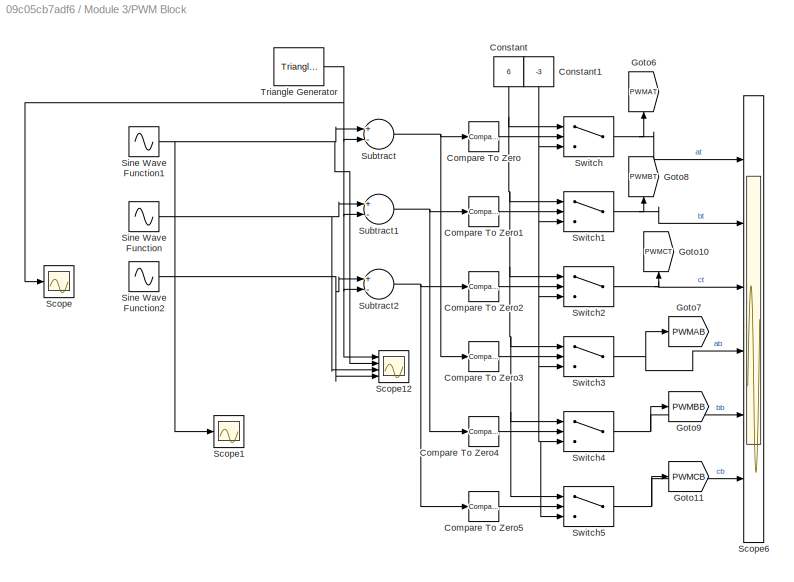
BLOCK [SubSystem] Module 3/PWM Block
  Ports = []
  RequestExecContextInheritance = off
BLOCK [Reference] Module 3/PWM Block/Compare To Zero  REF=simulink/Logic and Bit
Operations/Compare
To Zero
  Ports = [1, 1]
  SourceBlock = simulink/Logic and Bit\nOperations/Compare\nTo Zero
  SourceProductBaseCode = SL
  SourceProductName = Simulink
  SourceType = Compare To Zero
BLOCK [Reference] Module 3/PWM Block/Compare To Zero1  REF=simulink/Logic and Bit
Operations/Compare
To Zero
  Ports = [1, 1]
  SourceBlock = simulink/Logic and Bit\nOperations/Compare\nTo Zero
  SourceProductBaseCode = SL
  SourceProductName = Simulink
  SourceType = Compare To Zero
BLOCK [Reference] Module 3/PWM Block/Compare To Zero2  REF=simulink/Logic and Bit
Operations/Compare
To Zero
  Ports = [1, 1]
  SourceBlock = simulink/Logic and Bit\nOperations/Compare\nTo Zero
  SourceProductBaseCode = SL
  SourceProductName = Simulink
  SourceType = Compare To Zero
BLOCK [Reference] Module 3/PWM Block/Compare To Zero3  REF=simulink/Logic and Bit
Operations/Compare
To Zero
  Ports = [1, 1]
  SourceBlock = simulink/Logic and Bit\nOperations/Compare\nTo Zero
  SourceProductBaseCode = SL
  SourceProductName = Simulink
  SourceType = Compare To Zero
BLOCK [Reference] Module 3/PWM Block/Compare To Zero4  REF=simulink/Logic and Bit
Operations/Compare
To Zero
  Ports = [1, 1]
  SourceBlock = simulink/Logic and Bit\nOperations/Compare\nTo Zero
  SourceProductBaseCode = SL
  SourceProductName = Simulink
  SourceType = Compare To Zero
BLOCK [Reference] Module 3/PWM Block/Compare To Zero5  REF=simulink/Logic and Bit
Operations/Compare
To Zero
  Ports = [1, 1]
  SourceBlock = simulink/Logic and Bit\nOperations/Compare\nTo Zero
  SourceProductBaseCode = SL
  SourceProductName = Simulink
  SourceType = Compare To Zero
BLOCK [Constant] Module 3/PWM Block/Constant
  Value = 6
BLOCK [Constant] Module 3/PWM Block/Constant1
  Value = -3
BLOCK [Goto] Module 3/PWM Block/Goto10
  GotoTag = PWMCT
  TagVisibility = global
BLOCK [Goto] Module 3/PWM Block/Goto11
  GotoTag = PWMCB
  TagVisibility = global
BLOCK [Goto] Module 3/PWM Block/Goto6
  GotoTag = PWMAT
  TagVisibility = global
BLOCK [Goto] Module 3/PWM Block/Goto7
  GotoTag = PWMAB
  TagVisibility = global
BLOCK [Goto] Module 3/PWM Block/Goto8
  GotoTag = PWMBT
  TagVisibility = global
BLOCK [Goto] Module 3/PWM Block/Goto9
  GotoTag = PWMBB
  TagVisibility = global
BLOCK [Scope] Module 3/PWM Block/Scope
  Floating = off
  NumInputPorts = 1
  Ports = [1]
  ScopeSpecificationString = Simulink.scopes.TimeScopeBlockCfg('CurrentConfiguration', extmgr.ConfigurationSet(extmgr.Configuration('Core','General UI',true),extmgr.Configuration('Core','Source UI',true),extmgr.Configuration('Sources','WiredSimulink',true,'DataLoggingVariableName','ScopeData1'),extmgr.Configuration('Visuals','Time Domain',true,'SerializedDisplays',{struct('MinYLimReal','-1.01818','MaxYLimReal','1.25','YLabelR...<+1409ch>
BLOCK [Scope] Module 3/PWM Block/Scope1
  Floating = off
  NumInputPorts = 1
  Ports = [1]
  ScopeSpecificationString = Simulink.scopes.TimeScopeBlockCfg('CurrentConfiguration', extmgr.ConfigurationSet(extmgr.Configuration('Core','General UI',true),extmgr.Configuration('Core','Source UI',true),extmgr.Configuration('Sources','WiredSimulink',true,'DataLoggingVariableName','ScopeData2'),extmgr.Configuration('Visuals','Time Domain',true,'SerializedDisplays',{struct('MinYLimReal','-0.05124','MaxYLimReal','0.46116','YLab...<+1403ch>
BLOCK [Scope] Module 3/PWM Block/Scope12
  Floating = off
  NumInputPorts = 4
  Ports = [4]
  ScopeSpecificationString = Simulink.scopes.TimeScopeBlockCfg('CurrentConfiguration', extmgr.ConfigurationSet(extmgr.Configuration('Core','General UI',true),extmgr.Configuration('Core','Source UI',true),extmgr.Configuration('Sources','WiredSimulink',true,'DataLoggingVariableName','ScopeData3'),extmgr.Configuration('Visuals','Time Domain',true,'SerializedDisplays',{struct('MinYLimReal','-1.25','MaxYLimReal','1.25','YLabelReal...<+1451ch>
BLOCK [Scope] Module 3/PWM Block/Scope6
  Commented = on
  Floating = off
  NumInputPorts = 6
  Ports = [6]
  ScopeSpecificationString = Simulink.scopes.TimeScopeBlockCfg('CurrentConfiguration', extmgr.ConfigurationSet(extmgr.Configuration('Core','General UI',true),extmgr.Configuration('Core','Source UI',true),extmgr.Configuration('Sources','WiredSimulink',true,'DataLoggingVariableName','ScopeData9','DataLoggingLimitDataPoints',true),extmgr.Configuration('Visuals','Time Domain',true,'SerializedDisplays',{struct('MinYLimReal','-4.12...<+5169ch>
BLOCK [Sin] Module 3/PWM Block/Sine Wave Function
  Amplitude = ModulationIndex1
  Frequency = ffund*2*pi
  Phase = -2*pi/3
  Ports = [0, 1]
  SampleTime = 0
BLOCK [Sin] Module 3/PWM Block/Sine Wave Function1
  Amplitude = ModulationIndex1
  Frequency = ffund*2*pi
  Ports = [0, 1]
  SampleTime = 0
BLOCK [Sin] Module 3/PWM Block/Sine Wave Function2
  Amplitude = ModulationIndex1
  Frequency = ffund*2*pi
  Phase = 2*pi/3
  Ports = [0, 1]
  SampleTime = 0
BLOCK [Sum] Module 3/PWM Block/Subtract
  InputSameDT = off
  Inputs = +-
  OutDataTypeStr = Inherit: Inherit via internal rule
  Ports = [2, 1]
  SaturateOnIntegerOverflow = off
BLOCK [Sum] Module 3/PWM Block/Subtract1
  InputSameDT = off
  Inputs = +-
  OutDataTypeStr = Inherit: Inherit via internal rule
  Ports = [2, 1]
  SaturateOnIntegerOverflow = off
BLOCK [Sum] Module 3/PWM Block/Subtract2
  InputSameDT = off
  Inputs = +-
  OutDataTypeStr = Inherit: Inherit via internal rule
  Ports = [2, 1]
  SaturateOnIntegerOverflow = off
BLOCK [Switch] Module 3/PWM Block/Switch
  Criteria = u2 > Threshold
  InputSameDT = off
  SaturateOnIntegerOverflow = off
BLOCK [Switch] Module 3/PWM Block/Switch1
  Criteria = u2 > Threshold
  InputSameDT = off
  SaturateOnIntegerOverflow = off
BLOCK [Switch] Module 3/PWM Block/Switch2
  Criteria = u2 > Threshold
  InputSameDT = off
  SaturateOnIntegerOverflow = off
BLOCK [Switch] Module 3/PWM Block/Switch3
  Criteria = u2 > Threshold
  InputSameDT = off
  SaturateOnIntegerOverflow = off
BLOCK [Switch] Module 3/PWM Block/Switch4
  Criteria = u2 > Threshold
  InputSameDT = off
  SaturateOnIntegerOverflow = off
BLOCK [Switch] Module 3/PWM Block/Switch5
  Criteria = u2 > Threshold
  InputSameDT = off
  SaturateOnIntegerOverflow = off
BLOCK [Reference] Module 3/PWM Block/Triangle Generator  REF=powerlib_meascontrol/Pulse & Signal
Generators/Triangle
Generator
  Ports = [0, 1]
  SourceBlock = powerlib_meascontrol/Pulse & Signal\nGenerators/Triangle\nGenerator
  SourceProductBaseCode = PS
  SourceProductName = Simscape Power Systems
  SourceType = Triangle Generator
BLOCK [SubSystem] Module 3/R L Load2
  Ports = [0, 2, 0, 0, 0, 3, 1]
  RequestExecContextInheritance = off
BLOCK [PMIOPort] Module 3/R L Load2/A
  Side = Left
BLOCK [PMIOPort] Module 3/R L Load2/B
  Port = 2
  Side = Left
BLOCK [BusCreator] Module 3/R L Load2/Bus Creator
  DisplayOption = bar
  InheritFromInputs = on
  Inputs = 3
  Ports = [3, 1]
BLOCK [BusCreator] Module 3/R L Load2/Bus Creator1
  DisplayOption = bar
  InheritFromInputs = on
  Inputs = 3
  Ports = [3, 1]
BLOCK [PMIOPort] Module 3/R L Load2/C
  Port = 3
  Side = Left
BLOCK [SubSystem] Module 3/R L Load2/Current Measure1
  Ports = [0, 1, 0, 0, 0, 1, 1]
  RequestExecContextInheritance = off
BLOCK [Reference] Module 3/R L Load2/Current Measure1/Current Sensor1  REF=fl_lib/Electrical/Electrical Sensors/Current Sensor
  Ports = [0, 0, 0, 0, 0, 1, 2]
  SourceBlock = fl_lib/Electrical/Electrical Sensors/Current Sensor
  SourceProductBaseCode = SS
  SourceProductName = Simscape
  SourceType = Current Sensor
BLOCK [Outport] Module 3/R L Load2/Current Measure1/Data
  IconDisplay = Port number
BLOCK [PMIOPort] Module 3/R L Load2/Current Measure1/I+
  Side = Left
BLOCK [PMIOPort] Module 3/R L Load2/Current Measure1/I-
  Port = 2
  Side = Right
BLOCK [Reference] Module 3/R L Load2/Current Measure1/PS-Simulink Converter4  REF=nesl_utility/PS-Simulink
Converter
  Ports = [0, 1, 0, 0, 0, 1]
  SourceBlock = nesl_utility/PS-Simulink\nConverter
  SourceProductBaseCode = SS
  SourceProductName = Simscape
  SourceType = PS-Simulink\nConverter
BLOCK [SubSystem] Module 3/R L Load2/Current Measure2
  Ports = [0, 1, 0, 0, 0, 1, 1]
  RequestExecContextInheritance = off
BLOCK [Reference] Module 3/R L Load2/Current Measure2/Current Sensor1  REF=fl_lib/Electrical/Electrical Sensors/Current Sensor
  Ports = [0, 0, 0, 0, 0, 1, 2]
  SourceBlock = fl_lib/Electrical/Electrical Sensors/Current Sensor
  SourceProductBaseCode = SS
  SourceProductName = Simscape
  SourceType = Current Sensor
BLOCK [Outport] Module 3/R L Load2/Current Measure2/Data
  IconDisplay = Port number
BLOCK [PMIOPort] Module 3/R L Load2/Current Measure2/I+
  Side = Left
BLOCK [PMIOPort] Module 3/R L Load2/Current Measure2/I-
  Port = 2
  Side = Right
BLOCK [Reference] Module 3/R L Load2/Current Measure2/PS-Simulink Converter4  REF=nesl_utility/PS-Simulink
Converter
  Ports = [0, 1, 0, 0, 0, 1]
  SourceBlock = nesl_utility/PS-Simulink\nConverter
  SourceProductBaseCode = SS
  SourceProductName = Simscape
  SourceType = PS-Simulink\nConverter
BLOCK [SubSystem] Module 3/R L Load2/Current Measure5
  Ports = [0, 1, 0, 0, 0, 1, 1]
  RequestExecContextInheritance = off
BLOCK [Reference] Module 3/R L Load2/Current Measure5/Current Sensor1  REF=fl_lib/Electrical/Electrical Sensors/Current Sensor
  Ports = [0, 0, 0, 0, 0, 1, 2]
  SourceBlock = fl_lib/Electrical/Electrical Sensors/Current Sensor
  SourceProductBaseCode = SS
  SourceProductName = Simscape
  SourceType = Current Sensor
BLOCK [Outport] Module 3/R L Load2/Current Measure5/Data
  IconDisplay = Port number
BLOCK [PMIOPort] Module 3/R L Load2/Current Measure5/I+
  Side = Left
BLOCK [PMIOPort] Module 3/R L Load2/Current Measure5/I-
  Port = 2
  Side = Right
BLOCK [Reference] Module 3/R L Load2/Current Measure5/PS-Simulink Converter4  REF=nesl_utility/PS-Simulink
Converter
  Ports = [0, 1, 0, 0, 0, 1]
  SourceBlock = nesl_utility/PS-Simulink\nConverter
  SourceProductBaseCode = SS
  SourceProductName = Simscape
  SourceType = PS-Simulink\nConverter
BLOCK [Outport] Module 3/R L Load2/Currents
  IconDisplay = Port number
  Port = 2
BLOCK [Reference] Module 3/R L Load2/Inductor  REF=elec_lib/Passive Devices/Inductor
  Ports = [0, 0, 0, 0, 0, 1, 1]
  SourceBlock = elec_lib/Passive Devices/Inductor
  SourceProductBaseCode = SN
  SourceProductName = Simscape Electronics
  SourceType = Inductor
BLOCK [Reference] Module 3/R L Load2/Inductor1  REF=elec_lib/Passive Devices/Inductor
  Ports = [0, 0, 0, 0, 0, 1, 1]
  SourceBlock = elec_lib/Passive Devices/Inductor
  SourceProductBaseCode = SN
  SourceProductName = Simscape Electronics
  SourceType = Inductor
BLOCK [Reference] Module 3/R L Load2/Inductor2  REF=elec_lib/Passive Devices/Inductor
  Ports = [0, 0, 0, 0, 0, 1, 1]
  SourceBlock = elec_lib/Passive Devices/Inductor
  SourceProductBaseCode = SN
  SourceProductName = Simscape Electronics
  SourceType = Inductor
BLOCK [PMIOPort] Module 3/R L Load2/N
  Port = 4
  Side = Right
BLOCK [Reference] Module 3/R L Load2/Resistor  REF=elec_lib/Passive Devices/Resistor
  Ports = [0, 0, 0, 0, 0, 1, 1]
  SourceBlock = elec_lib/Passive Devices/Resistor
  SourceProductBaseCode = SN
  SourceProductName = Simscape Electronics
  SourceType = Resistor
BLOCK [Reference] Module 3/R L Load2/Resistor1  REF=elec_lib/Passive Devices/Resistor
  Ports = [0, 0, 0, 0, 0, 1, 1]
  SourceBlock = elec_lib/Passive Devices/Resistor
  SourceProductBaseCode = SN
  SourceProductName = Simscape Electronics
  SourceType = Resistor
BLOCK [Reference] Module 3/R L Load2/Resistor2  REF=elec_lib/Passive Devices/Resistor
  Ports = [0, 0, 0, 0, 0, 1, 1]
  SourceBlock = elec_lib/Passive Devices/Resistor
  SourceProductBaseCode = SN
  SourceProductName = Simscape Electronics
  SourceType = Resistor
BLOCK [SubSystem] Module 3/R L Load2/Voltage Measure1
  Ports = [0, 1, 0, 0, 0, 0, 2]
  RequestExecContextInheritance = off
BLOCK [Outport] Module 3/R L Load2/Voltage Measure1/Data
  IconDisplay = Port number
BLOCK [Reference] Module 3/R L Load2/Voltage Measure1/PS-Simulink Converter2  REF=nesl_utility/PS-Simulink
Converter
  Ports = [0, 1, 0, 0, 0, 1]
  SourceBlock = nesl_utility/PS-Simulink\nConverter
  SourceProductBaseCode = SS
  SourceProductName = Simscape
  SourceType = PS-Simulink\nConverter
BLOCK [PMIOPort] Module 3/R L Load2/Voltage Measure1/V+
  Side = Right
BLOCK [PMIOPort] Module 3/R L Load2/Voltage Measure1/V-
  Port = 2
  Side = Right
BLOCK [Reference] Module 3/R L Load2/Voltage Measure1/Voltage Sensor3  REF=fl_lib/Electrical/Electrical Sensors/Voltage Sensor
  Ports = [0, 0, 0, 0, 0, 1, 2]
  SourceBlock = fl_lib/Electrical/Electrical Sensors/Voltage Sensor
  SourceProductBaseCode = SS
  SourceProductName = Simscape
  SourceType = Voltage Sensor
BLOCK [SubSystem] Module 3/R L Load2/Voltage Measure3
  Ports = [0, 1, 0, 0, 0, 0, 2]
  RequestExecContextInheritance = off
BLOCK [Outport] Module 3/R L Load2/Voltage Measure3/Data
  IconDisplay = Port number
BLOCK [Reference] Module 3/R L Load2/Voltage Measure3/PS-Simulink Converter2  REF=nesl_utility/PS-Simulink
Converter
  Ports = [0, 1, 0, 0, 0, 1]
  SourceBlock = nesl_utility/PS-Simulink\nConverter
  SourceProductBaseCode = SS
  SourceProductName = Simscape
  SourceType = PS-Simulink\nConverter
BLOCK [PMIOPort] Module 3/R L Load2/Voltage Measure3/V+
  Side = Right
BLOCK [PMIOPort] Module 3/R L Load2/Voltage Measure3/V-
  Port = 2
  Side = Right
BLOCK [Reference] Module 3/R L Load2/Voltage Measure3/Voltage Sensor3  REF=fl_lib/Electrical/Electrical Sensors/Voltage Sensor
  Ports = [0, 0, 0, 0, 0, 1, 2]
  SourceBlock = fl_lib/Electrical/Electrical Sensors/Voltage Sensor
  SourceProductBaseCode = SS
  SourceProductName = Simscape
  SourceType = Voltage Sensor
BLOCK [SubSystem] Module 3/R L Load2/Voltage Measure4
  Ports = [0, 1, 0, 0, 0, 0, 2]
  RequestExecContextInheritance = off
BLOCK [Outport] Module 3/R L Load2/Voltage Measure4/Data
  IconDisplay = Port number
BLOCK [Reference] Module 3/R L Load2/Voltage Measure4/PS-Simulink Converter2  REF=nesl_utility/PS-Simulink
Converter
  Ports = [0, 1, 0, 0, 0, 1]
  SourceBlock = nesl_utility/PS-Simulink\nConverter
  SourceProductBaseCode = SS
  SourceProductName = Simscape
  SourceType = PS-Simulink\nConverter
BLOCK [PMIOPort] Module 3/R L Load2/Voltage Measure4/V+
  Side = Right
BLOCK [PMIOPort] Module 3/R L Load2/Voltage Measure4/V-
  Port = 2
  Side = Right
BLOCK [Reference] Module 3/R L Load2/Voltage Measure4/Voltage Sensor3  REF=fl_lib/Electrical/Electrical Sensors/Voltage Sensor
  Ports = [0, 0, 0, 0, 0, 1, 2]
  SourceBlock = fl_lib/Electrical/Electrical Sensors/Voltage Sensor
  SourceProductBaseCode = SS
  SourceProductName = Simscape
  SourceType = Voltage Sensor
BLOCK [Outport] Module 3/R L Load2/Voltages
  IconDisplay = Port number
BLOCK [Saturate] Module 3/Saturation
  InputPortMap = u0
  LowerLimit = -20
  Ports = [1, 1]
  UpperLimit = Vmodule*1.5
BLOCK [Saturate] Module 3/Saturation1
  InputPortMap = u0
  LowerLimit = -20
  Ports = [1, 1]
  UpperLimit = Vmodule*1.5
BLOCK [Saturate] Module 3/Saturation2
  InputPortMap = u0
  LowerLimit = -20
  Ports = [1, 1]
  UpperLimit = Vmodule*1.5
BLOCK [SubSystem] Module 3/Subsystem
  Ports = [0, 0, 0, 0, 0, 1, 1]
  RequestExecContextInheritance = off
BLOCK [PMIOPort] Module 3/Subsystem/+
  Side = Left
BLOCK [PMIOPort] Module 3/Subsystem/-
  Port = 2
  Side = Right
BLOCK [Reference] Module 3/Subsystem/Current Sensor2  REF=fl_lib/Electrical/Electrical Sensors/Current Sensor
  Ports = [0, 0, 0, 0, 0, 1, 2]
  SourceBlock = fl_lib/Electrical/Electrical Sensors/Current Sensor
  SourceProductBaseCode = SS
  SourceProductName = Simscape
  SourceType = Current Sensor
BLOCK [Goto] Module 3/Subsystem/Goto12
  GotoTag = ACapCurr
  TagVisibility = global
BLOCK [Reference] Module 3/Subsystem/PS-Simulink Converter3  REF=nesl_utility/PS-Simulink
Converter
  Ports = [0, 1, 0, 0, 0, 1]
  SourceBlock = nesl_utility/PS-Simulink\nConverter
  SourceProductBaseCode = SS
  SourceProductName = Simscape
  SourceType = PS-Simulink\nConverter
BLOCK [SubSystem] Module 3/Subsystem1
  Ports = [0, 0, 0, 0, 0, 1, 1]
  RequestExecContextInheritance = off
BLOCK [PMIOPort] Module 3/Subsystem1/+
  Side = Left
BLOCK [PMIOPort] Module 3/Subsystem1/-
  Port = 2
  Side = Right
BLOCK [Goto] Module 3/Subsystem1/Goto13
  GotoTag = ACap
  TagVisibility = global
BLOCK [Reference] Module 3/Subsystem1/PS-Simulink Converter1  REF=nesl_utility/PS-Simulink
Converter
  Ports = [0, 1, 0, 0, 0, 1]
  SourceBlock = nesl_utility/PS-Simulink\nConverter
  SourceProductBaseCode = SS
  SourceProductName = Simscape
  SourceType = PS-Simulink\nConverter
BLOCK [Reference] Module 3/Subsystem1/Voltage Sensor1  REF=fl_lib/Electrical/Electrical Sensors/Voltage Sensor
  Ports = [0, 0, 0, 0, 0, 1, 2]
  SourceBlock = fl_lib/Electrical/Electrical Sensors/Voltage Sensor
  SourceProductBaseCode = SS
  SourceProductName = Simscape
  SourceType = Voltage Sensor
BLOCK [SubSystem] Module 3/Subsystem2
  Ports = [0, 0, 0, 0, 0, 1, 1]
  RequestExecContextInheritance = off
BLOCK [PMIOPort] Module 3/Subsystem2/+
  Side = Left
BLOCK [PMIOPort] Module 3/Subsystem2/-
  Port = 2
  Side = Right
BLOCK [Reference] Module 3/Subsystem2/Current Sensor3  REF=fl_lib/Electrical/Electrical Sensors/Current Sensor
  Ports = [0, 0, 0, 0, 0, 1, 2]
  SourceBlock = fl_lib/Electrical/Electrical Sensors/Current Sensor
  SourceProductBaseCode = SS
  SourceProductName = Simscape
  SourceType = Current Sensor
BLOCK [Goto] Module 3/Subsystem2/Goto14
  GotoTag = BCapCurr
  TagVisibility = global
BLOCK [Reference] Module 3/Subsystem2/PS-Simulink Converter5  REF=nesl_utility/PS-Simulink
Converter
  Ports = [0, 1, 0, 0, 0, 1]
  SourceBlock = nesl_utility/PS-Simulink\nConverter
  SourceProductBaseCode = SS
  SourceProductName = Simscape
  SourceType = PS-Simulink\nConverter
BLOCK [SubSystem] Module 3/Subsystem3
  Ports = [0, 0, 0, 0, 0, 1, 1]
  RequestExecContextInheritance = off
BLOCK [PMIOPort] Module 3/Subsystem3/+
  Side = Left
BLOCK [PMIOPort] Module 3/Subsystem3/-
  Port = 2
  Side = Right
BLOCK [Goto] Module 3/Subsystem3/Goto16
  GotoTag = BCap
  TagVisibility = global
BLOCK [Reference] Module 3/Subsystem3/PS-Simulink Converter7  REF=nesl_utility/PS-Simulink
Converter
  Ports = [0, 1, 0, 0, 0, 1]
  SourceBlock = nesl_utility/PS-Simulink\nConverter
  SourceProductBaseCode = SS
  SourceProductName = Simscape
  SourceType = PS-Simulink\nConverter
BLOCK [Reference] Module 3/Subsystem3/Voltage Sensor2  REF=fl_lib/Electrical/Electrical Sensors/Voltage Sensor
  Ports = [0, 0, 0, 0, 0, 1, 2]
  SourceBlock = fl_lib/Electrical/Electrical Sensors/Voltage Sensor
  SourceProductBaseCode = SS
  SourceProductName = Simscape
  SourceType = Voltage Sensor
BLOCK [SubSystem] Module 3/Subsystem4
  Ports = [0, 0, 0, 0, 0, 1, 1]
  RequestExecContextInheritance = off
BLOCK [PMIOPort] Module 3/Subsystem4/+
  Side = Left
BLOCK [PMIOPort] Module 3/Subsystem4/-
  Port = 2
  Side = Right
BLOCK [Reference] Module 3/Subsystem4/Current Sensor4  REF=fl_lib/Electrical/Electrical Sensors/Current Sensor
  Ports = [0, 0, 0, 0, 0, 1, 2]
  SourceBlock = fl_lib/Electrical/Electrical Sensors/Current Sensor
  SourceProductBaseCode = SS
  SourceProductName = Simscape
  SourceType = Current Sensor
BLOCK [Goto] Module 3/Subsystem4/Goto15
  GotoTag = CCapCurr
  TagVisibility = global
BLOCK [Reference] Module 3/Subsystem4/PS-Simulink Converter6  REF=nesl_utility/PS-Simulink
Converter
  Ports = [0, 1, 0, 0, 0, 1]
  SourceBlock = nesl_utility/PS-Simulink\nConverter
  SourceProductBaseCode = SS
  SourceProductName = Simscape
  SourceType = PS-Simulink\nConverter
BLOCK [SubSystem] Module 3/Subsystem5
  Ports = [0, 0, 0, 0, 0, 1, 1]
  RequestExecContextInheritance = off
BLOCK [PMIOPort] Module 3/Subsystem5/+
  Side = Left
BLOCK [PMIOPort] Module 3/Subsystem5/-
  Port = 2
  Side = Right
BLOCK [Goto] Module 3/Subsystem5/Goto17
  GotoTag = CCap
  TagVisibility = global
BLOCK [Reference] Module 3/Subsystem5/PS-Simulink Converter8  REF=nesl_utility/PS-Simulink
Converter
  Ports = [0, 1, 0, 0, 0, 1]
  SourceBlock = nesl_utility/PS-Simulink\nConverter
  SourceProductBaseCode = SS
  SourceProductName = Simscape
  SourceType = PS-Simulink\nConverter
BLOCK [Reference] Module 3/Subsystem5/Voltage Sensor4  REF=fl_lib/Electrical/Electrical Sensors/Voltage Sensor
  Ports = [0, 0, 0, 0, 0, 1, 2]
  SourceBlock = fl_lib/Electrical/Electrical Sensors/Voltage Sensor
  SourceProductBaseCode = SS
  SourceProductName = Simscape
  SourceType = Voltage Sensor
BLOCK [SubSystem] Module 3/Subsystem6
  Ports = [0, 1, 0, 0, 0, 1, 1]
  RequestExecContextInheritance = off
BLOCK [PMIOPort] Module 3/Subsystem6/+
  Side = Left
BLOCK [PMIOPort] Module 3/Subsystem6/-
  Port = 2
  Side = Right
BLOCK [Reference] Module 3/Subsystem6/Current Sensor5  REF=fl_lib/Electrical/Electrical Sensors/Current Sensor
  Ports = [0, 0, 0, 0, 0, 1, 2]
  SourceBlock = fl_lib/Electrical/Electrical Sensors/Current Sensor
  SourceProductBaseCode = SS
  SourceProductName = Simscape
  SourceType = Current Sensor
BLOCK [Outport] Module 3/Subsystem6/Out1
  IconDisplay = Port number
BLOCK [Reference] Module 3/Subsystem6/PS-Simulink Converter9  REF=nesl_utility/PS-Simulink
Converter
  Ports = [0, 1, 0, 0, 0, 1]
  SourceBlock = nesl_utility/PS-Simulink\nConverter
  SourceProductBaseCode = SS
  SourceProductName = Simscape
  SourceType = PS-Simulink\nConverter
BLOCK [SubSystem] Module 3/Subsystem7
  Ports = [0, 1, 0, 0, 0, 1, 1]
  RequestExecContextInheritance = off
BLOCK [PMIOPort] Module 3/Subsystem7/+
  Port = 2
  Side = Left
BLOCK [PMIOPort] Module 3/Subsystem7/-
  Side = Right
BLOCK [Outport] Module 3/Subsystem7/Out1
  IconDisplay = Port number
BLOCK [Reference] Module 3/Subsystem7/PS-Simulink Converter10  REF=nesl_utility/PS-Simulink
Converter
  Ports = [0, 1, 0, 0, 0, 1]
  SourceBlock = nesl_utility/PS-Simulink\nConverter
  SourceProductBaseCode = SS
  SourceProductName = Simscape
  SourceType = PS-Simulink\nConverter
BLOCK [Reference] Module 3/Subsystem7/Voltage Sensor5  REF=fl_lib/Electrical/Electrical Sensors/Voltage Sensor
  Ports = [0, 0, 0, 0, 0, 1, 2]
  SourceBlock = fl_lib/Electrical/Electrical Sensors/Voltage Sensor
  SourceProductBaseCode = SS
  SourceProductName = Simscape
  SourceType = Voltage Sensor
BLOCK [Terminator] Module 3/Terminator12
BLOCK [Terminator] Module 3/Terminator13
BLOCK [Terminator] Module 3/Terminator14
BLOCK [Terminator] Module 3/Terminator15
BLOCK [Terminator] Module 3/Terminator16
BLOCK [Terminator] Module 3/Terminator17
BLOCK [Terminator] Module 3/Terminator18
BLOCK [Terminator] Module 3/Terminator19
BLOCK [Terminator] Module 3/Terminator20
BLOCK [Terminator] Module 3/Terminator21
BLOCK [Terminator] Module 3/Terminator22
BLOCK [Terminator] Module 3/Terminator23
BLOCK [ToWorkspace] Module 3/To Workspace3
  FixptAsFi = on
  MaxDataPoints = inf
  Ports = [1]
  SampleTime = -1
  Save2DSignal = 3-D array (concatenate along third dimension)
  SaveFormat = Timeseries
  VariableName = simout5
BLOCK [PMIOPort] Module 3/VdcNeg
  Port = 2
  Side = Left
BLOCK [PMIOPort] Module 3/VdcPos
  Side = Left
BLOCK [Reference] RMS1  REF=powerlib_meascontrol/Measurements/RMS
  Ports = [1, 1]
  SourceBlock = powerlib_meascontrol/Measurements/RMS
  SourceProductBaseCode = PS
  SourceProductName = Simscape Power Systems
  SourceType = RMS
BLOCK [Scope] Scope
  Floating = off
  NumInputPorts = 1
  Ports = [1]
  ScopeSpecificationString = Simulink.scopes.TimeScopeBlockCfg('CurrentConfiguration', extmgr.ConfigurationSet(extmgr.Configuration('Core','General UI',true,'FigureColor',[0.831372549019608 0.815686274509804 0.784313725490196]),extmgr.Configuration('Core','Source UI',true),extmgr.Configuration('Sources','WiredSimulink',true,'DataLoggingVariableName','ScopeData2'),extmgr.Configuration('Visuals','Time Domain',true,'SerializedDi...<+1930ch>
BLOCK [Scope] Scope1
  Floating = off
  NumInputPorts = 1
  Ports = [1]
  ScopeSpecificationString = Simulink.scopes.TimeScopeBlockCfg('CurrentConfiguration', extmgr.ConfigurationSet(extmgr.Configuration('Core','General UI',true,'FigureColor',[0.831372549019608 0.815686274509804 0.784313725490196]),extmgr.Configuration('Core','Source UI',true),extmgr.Configuration('Sources','WiredSimulink',true,'DataLoggingVariableName','ScopeData1'),extmgr.Configuration('Visuals','Time Domain',true,'SerializedDi...<+1713ch>
BLOCK [Scope] Scope11
  Floating = off
  NumInputPorts = 1
  Ports = [1]
  ScopeSpecificationString = Simulink.scopes.TimeScopeBlockCfg('CurrentConfiguration', extmgr.ConfigurationSet(extmgr.Configuration('Core','General UI',true),extmgr.Configuration('Core','Source UI',true),extmgr.Configuration('Sources','WiredSimulink',true,'DataLoggingVariableName','ScopeData1'),extmgr.Configuration('Visuals','Time Domain',true,'SerializedDisplays',{struct('MinYLimReal','178.4287','MaxYLimReal','326.49776','YL...<+1468ch>
BLOCK [Scope] Scope12
  Floating = off
  NumInputPorts = 1
  Ports = [1]
  ScopeSpecificationString = Simulink.scopes.TimeScopeBlockCfg('CurrentConfiguration', extmgr.ConfigurationSet(extmgr.Configuration('Core','General UI',true),extmgr.Configuration('Core','Source UI',true),extmgr.Configuration('Sources','WiredSimulink',true,'DataLoggingVariableName','ScopeData2'),extmgr.Configuration('Visuals','Time Domain',true,'SerializedDisplays',{struct('MinYLimReal','2.06093','MaxYLimReal','14.43499','YLab...<+1458ch>
BLOCK [Scope] Scope13
  Floating = off
  NumInputPorts = 1
  Ports = [1]
  ScopeSpecificationString = Simulink.scopes.TimeScopeBlockCfg('CurrentConfiguration', extmgr.ConfigurationSet(extmgr.Configuration('Core','General UI',true),extmgr.Configuration('Core','Source UI',true),extmgr.Configuration('Sources','WiredSimulink',true,'DataLoggingVariableName','ScopeData8','DataLogging',true),extmgr.Configuration('Visuals','Time Domain',true,'SerializedDisplays',{struct('MinYLimReal','-13.7282','MaxYLimRe...<+1503ch>
BLOCK [Scope] Scope2
  Floating = off
  NumInputPorts = 1
  Ports = [1]
  ScopeSpecificationString = Simulink.scopes.TimeScopeBlockCfg('CurrentConfiguration', extmgr.ConfigurationSet(extmgr.Configuration('Core','General UI',true,'FigureColor',[0.831372549019608 0.815686274509804 0.784313725490196]),extmgr.Configuration('Core','Source UI',true),extmgr.Configuration('Sources','WiredSimulink',true,'DataLoggingVariableName','CapacitorVoltages','DataLogging',true,'DataLoggingSaveFormat','Structure'),e...<+2037ch>
BLOCK [Scope] Scope3
  Floating = off
  IOType = viewer
  NumInputPorts = 1
  Ports = []
  ScopeSpecificationString = Simulink.scopes.TimeScopeBlockCfg('CurrentConfiguration', extmgr.ConfigurationSet(extmgr.Configuration('Core','General UI',true),extmgr.Configuration('Core','Source UI',true),extmgr.Configuration('Sources','WiredSimulink',true,'DataLoggingVariableName','ScopeData1'),extmgr.Configuration('Visuals','Time Domain',true,'SerializedDisplays',{struct('MinYLimReal','-8.58237','MaxYLimReal','14.61504','YLa...<+1744ch>
BLOCK [Scope] Scope4
  Floating = off
  IOType = viewer
  NumInputPorts = 1
  Ports = []
  ScopeSpecificationString = Simulink.scopes.TimeScopeBlockCfg('CurrentConfiguration', extmgr.ConfigurationSet(extmgr.Configuration('Core','General UI',true),extmgr.Configuration('Core','Source UI',true),extmgr.Configuration('Sources','WiredSimulink',true,'DataLoggingVariableName','ScopeData4'),extmgr.Configuration('Visuals','Time Domain',true,'SerializedDisplays',{struct('MinYLimReal','4.70463','MaxYLimReal','17.35981','YLab...<+1388ch>
BLOCK [Scope] Scope5
  Floating = off
  IOType = viewer
  NumInputPorts = 1
  Ports = []
  ScopeSpecificationString = Simulink.scopes.TimeScopeBlockCfg('CurrentConfiguration', extmgr.ConfigurationSet(extmgr.Configuration('Core','General UI',true),extmgr.Configuration('Core','Source UI',true),extmgr.Configuration('Sources','WiredSimulink',true,'DataLoggingVariableName','ScopeData3'),extmgr.Configuration('Visuals','Time Domain',true,'SerializedDisplays',{struct('MinYLimReal','-10.00000','MaxYLimReal','10.00000','YL...<+1365ch>
BLOCK [Scope] Scope7
  Floating = off
  IOType = viewer
  NumInputPorts = 1
  Ports = []
  ScopeSpecificationString = Simulink.scopes.TimeScopeBlockCfg('CurrentConfiguration', extmgr.ConfigurationSet(extmgr.Configuration('Core','General UI',true),extmgr.Configuration('Core','Source UI',true),extmgr.Configuration('Sources','WiredSimulink',true,'DataLoggingVariableName','ScopeData4'),extmgr.Configuration('Visuals','Time Domain',true,'SerializedDisplays',{struct('MinYLimReal','-0.32545','MaxYLimReal','2.92905','YLab...<+1386ch>
BLOCK [Reference] Solver Configuration  REF=nesl_utility/Solver
Configuration
  Ports = [0, 0, 0, 0, 0, 0, 1]
  SourceBlock = nesl_utility/Solver\nConfiguration
  SourceProductBaseCode = SS
  SourceProductName = Simscape
  SourceType = Solver\nConfiguration
BLOCK [Terminator] Terminator1
BLOCK [Terminator] Terminator10
BLOCK [Terminator] Terminator9
BLOCK [ToWorkspace] To Workspace
  FixptAsFi = on
  MaxDataPoints = inf
  Ports = [1]
  SampleTime = -1
  Save2DSignal = 3-D array (concatenate along third dimension)
  SaveFormat = Timeseries
  VariableName = simout
BLOCK [ToWorkspace] To Workspace1
  FixptAsFi = on
  MaxDataPoints = inf
  Ports = [1]
  SampleTime = -1
  Save2DSignal = 3-D array (concatenate along third dimension)
  SaveFormat = Timeseries
  VariableName = simout1
BLOCK [ToWorkspace] To Workspace2
  FixptAsFi = on
  MaxDataPoints = inf
  Ports = [1]
  SampleTime = -1
  Save2DSignal = 3-D array (concatenate along third dimension)
  SaveFormat = Timeseries
  VariableName = simout2
BLOCK [ToWorkspace] To Workspace3
  FixptAsFi = on
  MaxDataPoints = inf
  Ports = [1]
  SampleTime = -1
  Save2DSignal = 3-D array (concatenate along third dimension)
  SaveFormat = Timeseries
  VariableName = simout3
BLOCK [ToWorkspace] To Workspace4
  FixptAsFi = on
  MaxDataPoints = inf
  Ports = [1]
  SampleTime = -1
  Save2DSignal = 3-D array (concatenate along third dimension)
  SaveFormat = Timeseries
  VariableName = simout4
BLOCK [SubSystem] Voltage Measurement
  Ports = [0, 0, 0, 0, 0, 1, 1]
  RequestExecContextInheritance = off
BLOCK [PMIOPort] Voltage Measurement/+
  Side = Left
BLOCK [PMIOPort] Voltage Measurement/-
  Port = 2
  Side = Right
BLOCK [Goto] Voltage Measurement/Goto
  GotoTag = VoltRec
  TagVisibility = global
BLOCK [Reference] Voltage Measurement/PS-Simulink Converter2  REF=nesl_utility/PS-Simulink
Converter
  Ports = [0, 1, 0, 0, 0, 1]
  SourceBlock = nesl_utility/PS-Simulink\nConverter
  SourceProductBaseCode = SS
  SourceProductName = Simscape
  SourceType = PS-Simulink\nConverter
BLOCK [Reference] Voltage Measurement/Voltage Sensor1  REF=fl_lib/Electrical/Electrical Sensors/Voltage Sensor
  Ports = [0, 0, 0, 0, 0, 1, 2]
  SourceBlock = fl_lib/Electrical/Electrical Sensors/Voltage Sensor
  SourceProductBaseCode = SS
  SourceProductName = Simscape
  SourceType = Voltage Sensor
LINE Bus Selector1:1 -> Scope1:1
LINE Current Measurement /PS-Simulink Converter1:1 -> Current Measurement /Goto:1
NET From1:1 -> Mean:1, Scope11:1, To Workspace3:1
NET From:1 -> Mean1:1, Scope12:1, To Workspace2:1
LINE Mean1:1 -> Display1:1
LINE Mean:1 -> Display:1
LINE Module 3/Bus Creator1:1 -> Module 3/CapacitorCurrent:1
LINE Module 3/Bus Creator:1 -> Module 3/CapacitorVoltage:1
LINE Module 3/Current Measurement /PS-Simulink Converter1:1 -> Module 3/Current Measurement /Goto:1
LINE Module 3/Current Measurement 1/PS-Simulink Converter1:1 -> Module 3/Current Measurement 1/Goto:1
LINE Module 3/Current Measurement 2/PS-Simulink Converter1:1 -> Module 3/Current Measurement 2/Goto:1
LINE Module 3/From10:1 -> Module 3/Bus Creator1:2
LINE Module 3/From11:1 -> Module 3/Bus Creator1:3
LINE Module 3/From12:1 -> Module 3/Gate Driver6:1
LINE Module 3/From13:1 -> Module 3/Gate Driver7:1
LINE Module 3/From14:1 -> Module 3/Gate Driver8:1
LINE Module 3/From15:1 -> Module 3/Gate Driver9:1
LINE Module 3/From16:1 -> Module 3/Gate Driver10:1
LINE Module 3/From17:1 -> Module 3/Gate Driver11:1
LINE Module 3/From1:1 -> Module 3/Mux:2
LINE Module 3/From2:1 -> Module 3/Mux:3
LINE Module 3/From6:1 -> Module 3/Saturation2:1
LINE Module 3/From7:1 -> Module 3/Saturation1:1
LINE Module 3/From8:1 -> Module 3/Saturation:1
LINE Module 3/From9:1 -> Module 3/Bus Creator1:1
LINE Module 3/From:1 -> Module 3/Mux:1
LINE Module 3/Gate Driver10/Current Measure/PS-Simulink Converter4:1 -> Module 3/Gate Driver10/Current Measure/Data:1
LINE Module 3/Gate Driver10/Current Measure:1 -> Module 3/Gate Driver10/Curr:1
LINE Module 3/Gate Driver10/PWM:1 -> Module 3/Gate Driver10/Rate Limiter2:1
LINE Module 3/Gate Driver10/Rate Limiter2/Constant2:1 -> Module 3/Gate Driver10/Rate Limiter2/Rate Limiter Dynamic:1
LINE Module 3/Gate Driver10/Rate Limiter2/Constant3:1 -> Module 3/Gate Driver10/Rate Limiter2/Rate Limiter Dynamic:3
LINE Module 3/Gate Driver10/Rate Limiter2/Inp:1 -> Module 3/Gate Driver10/Rate Limiter2/Rate Limiter Dynamic:2
LINE Module 3/Gate Driver10/Rate Limiter2/Rate Limiter Dynamic:1 -> Module 3/Gate Driver10/Rate Limiter2/Outp:1
LINE Module 3/Gate Driver10/Rate Limiter2:1 -> Module 3/Gate Driver10/Simulink-PS Converter:1
LINE Module 3/Gate Driver10/Voltage Measure3/PS-Simulink Converter2:1 -> Module 3/Gate Driver10/Voltage Measure3/Data:1
LINE Module 3/Gate Driver10/Voltage Measure3:1 -> Module 3/Gate Driver10/Volt:1
LINE Module 3/Gate Driver10:1 -> Module 3/Terminator20:1
LINE Module 3/Gate Driver10:2 -> Module 3/Terminator21:1
LINE Module 3/Gate Driver11/Current Measure/PS-Simulink Converter4:1 -> Module 3/Gate Driver11/Current Measure/Data:1
LINE Module 3/Gate Driver11/Current Measure:1 -> Module 3/Gate Driver11/Curr:1
LINE Module 3/Gate Driver11/PWM:1 -> Module 3/Gate Driver11/Rate Limiter2:1
LINE Module 3/Gate Driver11/Rate Limiter2/Constant2:1 -> Module 3/Gate Driver11/Rate Limiter2/Rate Limiter Dynamic:1
LINE Module 3/Gate Driver11/Rate Limiter2/Constant3:1 -> Module 3/Gate Driver11/Rate Limiter2/Rate Limiter Dynamic:3
LINE Module 3/Gate Driver11/Rate Limiter2/Inp:1 -> Module 3/Gate Driver11/Rate Limiter2/Rate Limiter Dynamic:2
LINE Module 3/Gate Driver11/Rate Limiter2/Rate Limiter Dynamic:1 -> Module 3/Gate Driver11/Rate Limiter2/Outp:1
LINE Module 3/Gate Driver11/Rate Limiter2:1 -> Module 3/Gate Driver11/Simulink-PS Converter:1
LINE Module 3/Gate Driver11/Voltage Measure3/PS-Simulink Converter2:1 -> Module 3/Gate Driver11/Voltage Measure3/Data:1
LINE Module 3/Gate Driver11/Voltage Measure3:1 -> Module 3/Gate Driver11/Volt:1
LINE Module 3/Gate Driver11:1 -> Module 3/Terminator22:1
LINE Module 3/Gate Driver11:2 -> Module 3/Terminator23:1
LINE Module 3/Gate Driver6/Current Measure/PS-Simulink Converter4:1 -> Module 3/Gate Driver6/Current Measure/Data:1
LINE Module 3/Gate Driver6/Current Measure:1 -> Module 3/Gate Driver6/Curr:1
LINE Module 3/Gate Driver6/PWM:1 -> Module 3/Gate Driver6/Rate Limiter2:1
LINE Module 3/Gate Driver6/Rate Limiter2/Constant2:1 -> Module 3/Gate Driver6/Rate Limiter2/Rate Limiter Dynamic:1
LINE Module 3/Gate Driver6/Rate Limiter2/Constant3:1 -> Module 3/Gate Driver6/Rate Limiter2/Rate Limiter Dynamic:3
LINE Module 3/Gate Driver6/Rate Limiter2/Inp:1 -> Module 3/Gate Driver6/Rate Limiter2/Rate Limiter Dynamic:2
LINE Module 3/Gate Driver6/Rate Limiter2/Rate Limiter Dynamic:1 -> Module 3/Gate Driver6/Rate Limiter2/Outp:1
LINE Module 3/Gate Driver6/Rate Limiter2:1 -> Module 3/Gate Driver6/Simulink-PS Converter:1
LINE Module 3/Gate Driver6/Voltage Measure3/PS-Simulink Converter2:1 -> Module 3/Gate Driver6/Voltage Measure3/Data:1
LINE Module 3/Gate Driver6/Voltage Measure3:1 -> Module 3/Gate Driver6/Volt:1
LINE Module 3/Gate Driver6:1 -> Module 3/Terminator12:1
LINE Module 3/Gate Driver6:2 -> Module 3/Terminator13:1
LINE Module 3/Gate Driver7/Current Measure/PS-Simulink Converter4:1 -> Module 3/Gate Driver7/Current Measure/Data:1
LINE Module 3/Gate Driver7/Current Measure:1 -> Module 3/Gate Driver7/Curr:1
LINE Module 3/Gate Driver7/PWM:1 -> Module 3/Gate Driver7/Rate Limiter2:1
LINE Module 3/Gate Driver7/Rate Limiter2/Constant2:1 -> Module 3/Gate Driver7/Rate Limiter2/Rate Limiter Dynamic:1
LINE Module 3/Gate Driver7/Rate Limiter2/Constant3:1 -> Module 3/Gate Driver7/Rate Limiter2/Rate Limiter Dynamic:3
LINE Module 3/Gate Driver7/Rate Limiter2/Inp:1 -> Module 3/Gate Driver7/Rate Limiter2/Rate Limiter Dynamic:2
LINE Module 3/Gate Driver7/Rate Limiter2/Rate Limiter Dynamic:1 -> Module 3/Gate Driver7/Rate Limiter2/Outp:1
LINE Module 3/Gate Driver7/Rate Limiter2:1 -> Module 3/Gate Driver7/Simulink-PS Converter:1
LINE Module 3/Gate Driver7/Voltage Measure3/PS-Simulink Converter2:1 -> Module 3/Gate Driver7/Voltage Measure3/Data:1
LINE Module 3/Gate Driver7/Voltage Measure3:1 -> Module 3/Gate Driver7/Volt:1
LINE Module 3/Gate Driver7:1 -> Module 3/Terminator14:1
LINE Module 3/Gate Driver7:2 -> Module 3/Terminator15:1
LINE Module 3/Gate Driver8/Current Measure/PS-Simulink Converter4:1 -> Module 3/Gate Driver8/Current Measure/Data:1
LINE Module 3/Gate Driver8/Current Measure:1 -> Module 3/Gate Driver8/Curr:1
LINE Module 3/Gate Driver8/PWM:1 -> Module 3/Gate Driver8/Rate Limiter2:1
LINE Module 3/Gate Driver8/Rate Limiter2/Constant2:1 -> Module 3/Gate Driver8/Rate Limiter2/Rate Limiter Dynamic:1
LINE Module 3/Gate Driver8/Rate Limiter2/Constant3:1 -> Module 3/Gate Driver8/Rate Limiter2/Rate Limiter Dynamic:3
LINE Module 3/Gate Driver8/Rate Limiter2/Inp:1 -> Module 3/Gate Driver8/Rate Limiter2/Rate Limiter Dynamic:2
LINE Module 3/Gate Driver8/Rate Limiter2/Rate Limiter Dynamic:1 -> Module 3/Gate Driver8/Rate Limiter2/Outp:1
LINE Module 3/Gate Driver8/Rate Limiter2:1 -> Module 3/Gate Driver8/Simulink-PS Converter:1
LINE Module 3/Gate Driver8/Voltage Measure3/PS-Simulink Converter2:1 -> Module 3/Gate Driver8/Voltage Measure3/Data:1
LINE Module 3/Gate Driver8/Voltage Measure3:1 -> Module 3/Gate Driver8/Volt:1
LINE Module 3/Gate Driver8:1 -> Module 3/Terminator16:1
LINE Module 3/Gate Driver8:2 -> Module 3/Terminator17:1
LINE Module 3/Gate Driver9/Current Measure/PS-Simulink Converter4:1 -> Module 3/Gate Driver9/Current Measure/Data:1
LINE Module 3/Gate Driver9/Current Measure:1 -> Module 3/Gate Driver9/Curr:1
LINE Module 3/Gate Driver9/PWM:1 -> Module 3/Gate Driver9/Rate Limiter2:1
LINE Module 3/Gate Driver9/Rate Limiter2/Constant2:1 -> Module 3/Gate Driver9/Rate Limiter2/Rate Limiter Dynamic:1
LINE Module 3/Gate Driver9/Rate Limiter2/Constant3:1 -> Module 3/Gate Driver9/Rate Limiter2/Rate Limiter Dynamic:3
LINE Module 3/Gate Driver9/Rate Limiter2/Inp:1 -> Module 3/Gate Driver9/Rate Limiter2/Rate Limiter Dynamic:2
LINE Module 3/Gate Driver9/Rate Limiter2/Rate Limiter Dynamic:1 -> Module 3/Gate Driver9/Rate Limiter2/Outp:1
LINE Module 3/Gate Driver9/Rate Limiter2:1 -> Module 3/Gate Driver9/Simulink-PS Converter:1
LINE Module 3/Gate Driver9/Voltage Measure3/PS-Simulink Converter2:1 -> Module 3/Gate Driver9/Voltage Measure3/Data:1
LINE Module 3/Gate Driver9/Voltage Measure3:1 -> Module 3/Gate Driver9/Volt:1
LINE Module 3/Gate Driver9:1 -> Module 3/Terminator18:1
LINE Module 3/Gate Driver9:2 -> Module 3/Terminator19:1
LINE Module 3/Mux:1 -> Module 3/To Workspace3:1
LINE Module 3/PWM Block/Compare To Zero1:1 -> Module 3/PWM Block/Switch1:2
LINE Module 3/PWM Block/Compare To Zero2:1 -> Module 3/PWM Block/Switch2:2
LINE Module 3/PWM Block/Compare To Zero3:1 -> Module 3/PWM Block/Switch3:2
LINE Module 3/PWM Block/Compare To Zero4:1 -> Module 3/PWM Block/Switch4:2
LINE Module 3/PWM Block/Compare To Zero5:1 -> Module 3/PWM Block/Switch5:2
LINE Module 3/PWM Block/Compare To Zero:1 -> Module 3/PWM Block/Switch:2
NET Module 3/PWM Block/Constant1:1 -> Module 3/PWM Block/Switch1:3, Module 3/PWM Block/Switch2:3, Module 3/PWM Block/Switch3:3, Module 3/PWM Block/Switch4:3, Module 3/PWM Block/Switch5:3, Module 3/PWM Block/Switch:3
NET Module 3/PWM Block/Constant:1 -> Module 3/PWM Block/Switch1:1, Module 3/PWM Block/Switch2:1, Module 3/PWM Block/Switch3:1, Module 3/PWM Block/Switch4:1, Module 3/PWM Block/Switch5:1, Module 3/PWM Block/Switch:1
NET Module 3/PWM Block/Sine Wave Function1:1 -> Module 3/PWM Block/Scope12:2, Module 3/PWM Block/Scope1:1, Module 3/PWM Block/Subtract:1
NET Module 3/PWM Block/Sine Wave Function2:1 -> Module 3/PWM Block/Scope12:4, Module 3/PWM Block/Subtract2:1
NET Module 3/PWM Block/Sine Wave Function:1 -> Module 3/PWM Block/Scope12:3, Module 3/PWM Block/Subtract1:1
NET Module 3/PWM Block/Subtract1:1 -> Module 3/PWM Block/Compare To Zero1:1, Module 3/PWM Block/Compare To Zero4:1
NET Module 3/PWM Block/Subtract2:1 -> Module 3/PWM Block/Compare To Zero2:1, Module 3/PWM Block/Compare To Zero5:1
NET Module 3/PWM Block/Subtract:1 -> Module 3/PWM Block/Compare To Zero3:1, Module 3/PWM Block/Compare To Zero:1
NET Module 3/PWM Block/Switch1:1 -> Module 3/PWM Block/Goto8:1, Module 3/PWM Block/Scope6:2
NET Module 3/PWM Block/Switch2:1 -> Module 3/PWM Block/Goto10:1, Module 3/PWM Block/Scope6:3
NET Module 3/PWM Block/Switch3:1 -> Module 3/PWM Block/Goto7:1, Module 3/PWM Block/Scope6:4
NET Module 3/PWM Block/Switch4:1 -> Module 3/PWM Block/Goto9:1, Module 3/PWM Block/Scope6:5
NET Module 3/PWM Block/Switch5:1 -> Module 3/PWM Block/Goto11:1, Module 3/PWM Block/Scope6:6
NET Module 3/PWM Block/Switch:1 -> Module 3/PWM Block/Goto6:1, Module 3/PWM Block/Scope6:1
NET Module 3/PWM Block/Triangle Generator:1 -> Module 3/PWM Block/Scope12:1, Module 3/PWM Block/Scope:1, Module 3/PWM Block/Subtract1:2, Module 3/PWM Block/Subtract2:2, Module 3/PWM Block/Subtract:2
LINE Module 3/R L Load2/Bus Creator1:1 -> Module 3/R L Load2/Currents:1
LINE Module 3/R L Load2/Bus Creator:1 -> Module 3/R L Load2/Voltages:1
LINE Module 3/R L Load2/Current Measure1/PS-Simulink Converter4:1 -> Module 3/R L Load2/Current Measure1/Data:1
LINE Module 3/R L Load2/Current Measure1:1 -> Module 3/R L Load2/Bus Creator1:2
LINE Module 3/R L Load2/Current Measure2/PS-Simulink Converter4:1 -> Module 3/R L Load2/Current Measure2/Data:1
LINE Module 3/R L Load2/Current Measure2:1 -> Module 3/R L Load2/Bus Creator1:3
LINE Module 3/R L Load2/Current Measure5/PS-Simulink Converter4:1 -> Module 3/R L Load2/Current Measure5/Data:1
LINE Module 3/R L Load2/Current Measure5:1 -> Module 3/R L Load2/Bus Creator1:1
LINE Module 3/R L Load2/Voltage Measure1/PS-Simulink Converter2:1 -> Module 3/R L Load2/Voltage Measure1/Data:1
LINE Module 3/R L Load2/Voltage Measure1:1 -> Module 3/R L Load2/Bus Creator:2
LINE Module 3/R L Load2/Voltage Measure3/PS-Simulink Converter2:1 -> Module 3/R L Load2/Voltage Measure3/Data:1
LINE Module 3/R L Load2/Voltage Measure3:1 -> Module 3/R L Load2/Bus Creator:1
LINE Module 3/R L Load2/Voltage Measure4/PS-Simulink Converter2:1 -> Module 3/R L Load2/Voltage Measure4/Data:1
LINE Module 3/R L Load2/Voltage Measure4:1 -> Module 3/R L Load2/Bus Creator:3
LINE Module 3/R L Load2:1 -> Module 3/LoadVoltage:1
LINE Module 3/R L Load2:2 -> Module 3/LoadCurrent:1
LINE Module 3/Saturation1:1 -> Module 3/Bus Creator:2
LINE Module 3/Saturation2:1 -> Module 3/Bus Creator:1
LINE Module 3/Saturation:1 -> Module 3/Bus Creator:3
LINE Module 3/Subsystem/PS-Simulink Converter3:1 -> Module 3/Subsystem/Goto12:1
LINE Module 3/Subsystem1/PS-Simulink Converter1:1 -> Module 3/Subsystem1/Goto13:1
LINE Module 3/Subsystem2/PS-Simulink Converter5:1 -> Module 3/Subsystem2/Goto14:1
LINE Module 3/Subsystem3/PS-Simulink Converter7:1 -> Module 3/Subsystem3/Goto16:1
LINE Module 3/Subsystem4/PS-Simulink Converter6:1 -> Module 3/Subsystem4/Goto15:1
LINE Module 3/Subsystem5/PS-Simulink Converter8:1 -> Module 3/Subsystem5/Goto17:1
LINE Module 3/Subsystem6/PS-Simulink Converter9:1 -> Module 3/Subsystem6/Out1:1
LINE Module 3/Subsystem6:1 -> Module 3/DC Current:1
LINE Module 3/Subsystem7/PS-Simulink Converter10:1 -> Module 3/Subsystem7/Out1:1
LINE Module 3/Subsystem7:1 -> Module 3/DC Voltage:1
NET Module 3:1 -> Scope2:1, To Workspace1:1
NET Module 3:2 -> Bus Selector1:1, RMS1:1, To Workspace:1
LINE Module 3:3 -> Terminator1:1
NET Module 3:4 -> Scope13:1, To Workspace4:1
LINE Module 3:5 -> Terminator9:1
LINE Module 3:6 -> Terminator10:1
LINE RMS1:1 -> Scope:1
LINE Voltage Measurement/PS-Simulink Converter2:1 -> Voltage Measurement/Goto:1
PLINE Current Measurement /+:RConn1 -- Current Measurement /Current Sensor2:LConn1
PLINE Current Measurement /-:RConn1 -- Current Measurement /Current Sensor2:RConn2
PLINE Current Measurement /Current Sensor2:RConn1 -- Current Measurement /PS-Simulink Converter1:LConn1
PLINE Current Measurement :LConn1 -- DC Supply:RConn1
PNET net1: Current Measurement :RConn1 -- Module 3:LConn1 -- Voltage Measurement:LConn1
PNET net2: DC Supply/Capacitor3:LConn1 -- DC Supply/Diode2:RConn1 -- DC Supply/Diode4:RConn1 -- DC Supply/Diode:RConn1 -- DC Supply/Resistor1:LConn1
PNET net3: DC Supply/Capacitor3:RConn1 -- DC Supply/Inductor21:LConn1 -- DC Supply/N:RConn1
PNET net4: DC Supply/Diode1:LConn1 -- DC Supply/Diode3:LConn1 -- DC Supply/Diode5:LConn1
PNET net5: DC Supply/Diode1:RConn1 -- DC Supply/Diode:LConn1 -- DC Supply/Sinusoidal Voltage Source:LConn1
PNET net6: DC Supply/Diode2:LConn1 -- DC Supply/Diode3:RConn1 -- DC Supply/Sinusoidal Voltage Source1:LConn1
PNET net7: DC Supply/Diode4:LConn1 -- DC Supply/Diode5:RConn1 -- DC Supply/Sinusoidal Voltage Source2:LConn1
PLINE DC Supply/Inductor21:RConn1 -- DC Supply/Voltage Source:RConn1
PLINE DC Supply/P:RConn1 -- DC Supply/Resistor18:RConn1
PLINE DC Supply/Resistor18:LConn1 -- DC Supply/Voltage Source:LConn1
PNET net8: DC Supply/Sinusoidal Voltage Source1:RConn1 -- DC Supply/Sinusoidal Voltage Source2:RConn1 -- DC Supply/Sinusoidal Voltage Source:RConn1
PNET net9: DC Supply:LConn1 -- Electrical Reference1:LConn1 -- Module 3:LConn2 -- Solver Configuration:RConn1 -- Voltage Measurement:RConn1
PNET net10: Module 3/Capacitor3:LConn1 -- Module 3/Subsystem1:LConn1 -- Module 3/Subsystem:RConn1
PNET net11: Module 3/Capacitor3:RConn1 -- Module 3/Capacitor4:RConn1 -- Module 3/Capacitor5:RConn1 -- Module 3/Gate Driver11:LConn2 -- Module 3/Gate Driver7:LConn2 -- Module 3/Gate Driver9:LConn2 -- Module 3/Subsystem1:RConn1 -- Module 3/Subsystem3:RConn1 -- Module 3/Subsystem5:RConn1 -- Module 3/Subsystem7:RConn1 -- Module 3/VdcNeg:RConn1
PNET net12: Module 3/Capacitor4:LConn1 -- Module 3/Subsystem2:RConn1 -- Module 3/Subsystem3:LConn1
PNET net13: Module 3/Capacitor5:LConn1 -- Module 3/Subsystem4:RConn1 -- Module 3/Subsystem5:LConn1
PLINE Module 3/Current Measurement /+:RConn1 -- Module 3/Current Measurement /Current Sensor2:LConn1
PLINE Module 3/Current Measurement /-:RConn1 -- Module 3/Current Measurement /Current Sensor2:RConn2
PLINE Module 3/Current Measurement /Current Sensor2:RConn1 -- Module 3/Current Measurement /PS-Simulink Converter1:LConn1
PLINE Module 3/Current Measurement 1/+:RConn1 -- Module 3/Current Measurement 1/Current Sensor2:LConn1
PLINE Module 3/Current Measurement 1/-:RConn1 -- Module 3/Current Measurement 1/Current Sensor2:RConn2
PLINE Module 3/Current Measurement 1/Current Sensor2:RConn1 -- Module 3/Current Measurement 1/PS-Simulink Converter1:LConn1
PNET net14: Module 3/Current Measurement 1:LConn1 -- Module 3/Current Measurement 2:LConn1 -- Module 3/Current Measurement :LConn1 -- Module 3/Subsystem2:LConn1 -- Module 3/Subsystem4:LConn1 -- Module 3/Subsystem6:RConn1 -- Module 3/Subsystem:LConn1
PLINE Module 3/Current Measurement 1:RConn1 -- Module 3/Gate Driver8:LConn1
PLINE Module 3/Current Measurement 2/+:RConn1 -- Module 3/Current Measurement 2/Current Sensor2:LConn1
PLINE Module 3/Current Measurement 2/-:RConn1 -- Module 3/Current Measurement 2/Current Sensor2:RConn2
PLINE Module 3/Current Measurement 2/Current Sensor2:RConn1 -- Module 3/Current Measurement 2/PS-Simulink Converter1:LConn1
PLINE Module 3/Current Measurement 2:RConn1 -- Module 3/Gate Driver10:LConn1
PLINE Module 3/Current Measurement :RConn1 -- Module 3/Gate Driver6:LConn1
PNET net15: Module 3/Gate Driver10/Capacitor:LConn1 -- Module 3/Gate Driver10/Inductor1:LConn1 -- Module 3/Gate Driver10/Switch6:LConn1 -- Module 3/Gate Driver10/Voltage Measure3:RConn1
PNET net16: Module 3/Gate Driver10/Capacitor:RConn1 -- Module 3/Gate Driver10/Inductor:LConn1 -- Module 3/Gate Driver10/Switch6:RConn2 -- Module 3/Gate Driver10/Voltage Measure3:RConn2
PLINE Module 3/Gate Driver10/Current Measure/Current Sensor1:LConn1 -- Module 3/Gate Driver10/Current Measure/I+:RConn1
PLINE Module 3/Gate Driver10/Current Measure/Current Sensor1:RConn1 -- Module 3/Gate Driver10/Current Measure/PS-Simulink Converter4:LConn1
PLINE Module 3/Gate Driver10/Current Measure/Current Sensor1:RConn2 -- Module 3/Gate Driver10/Current Measure/I-:RConn1
PLINE Module 3/Gate Driver10/Current Measure:LConn1 -- Module 3/Gate Driver10/Drain:RConn1
PLINE Module 3/Gate Driver10/Current Measure:RConn1 -- Module 3/Gate Driver10/Inductor1:RConn1
PLINE Module 3/Gate Driver10/Inductor:RConn1 -- Module 3/Gate Driver10/Source:RConn1
PLINE Module 3/Gate Driver10/Simulink-PS Converter:RConn1 -- Module 3/Gate Driver10/Switch6:RConn1
PLINE Module 3/Gate Driver10/Voltage Measure3/PS-Simulink Converter2:LConn1 -- Module 3/Gate Driver10/Voltage Measure3/Voltage Sensor3:RConn1
PLINE Module 3/Gate Driver10/Voltage Measure3/V+:RConn1 -- Module 3/Gate Driver10/Voltage Measure3/Voltage Sensor3:LConn1
PLINE Module 3/Gate Driver10/Voltage Measure3/V-:RConn1 -- Module 3/Gate Driver10/Voltage Measure3/Voltage Sensor3:RConn2
PNET net17: Module 3/Gate Driver10:LConn2 -- Module 3/Gate Driver11:LConn1 -- Module 3/R L Load2:LConn3
PNET net18: Module 3/Gate Driver11/Capacitor:LConn1 -- Module 3/Gate Driver11/Inductor1:LConn1 -- Module 3/Gate Driver11/Switch6:LConn1 -- Module 3/Gate Driver11/Voltage Measure3:RConn1
PNET net19: Module 3/Gate Driver11/Capacitor:RConn1 -- Module 3/Gate Driver11/Inductor:LConn1 -- Module 3/Gate Driver11/Switch6:RConn2 -- Module 3/Gate Driver11/Voltage Measure3:RConn2
PLINE Module 3/Gate Driver11/Current Measure/Current Sensor1:LConn1 -- Module 3/Gate Driver11/Current Measure/I+:RConn1
PLINE Module 3/Gate Driver11/Current Measure/Current Sensor1:RConn1 -- Module 3/Gate Driver11/Current Measure/PS-Simulink Converter4:LConn1
PLINE Module 3/Gate Driver11/Current Measure/Current Sensor1:RConn2 -- Module 3/Gate Driver11/Current Measure/I-:RConn1
PLINE Module 3/Gate Driver11/Current Measure:LConn1 -- Module 3/Gate Driver11/Drain:RConn1
PLINE Module 3/Gate Driver11/Current Measure:RConn1 -- Module 3/Gate Driver11/Inductor1:RConn1
PLINE Module 3/Gate Driver11/Inductor:RConn1 -- Module 3/Gate Driver11/Source:RConn1
PLINE Module 3/Gate Driver11/Simulink-PS Converter:RConn1 -- Module 3/Gate Driver11/Switch6:RConn1
PLINE Module 3/Gate Driver11/Voltage Measure3/PS-Simulink Converter2:LConn1 -- Module 3/Gate Driver11/Voltage Measure3/Voltage Sensor3:RConn1
PLINE Module 3/Gate Driver11/Voltage Measure3/V+:RConn1 -- Module 3/Gate Driver11/Voltage Measure3/Voltage Sensor3:LConn1
PLINE Module 3/Gate Driver11/Voltage Measure3/V-:RConn1 -- Module 3/Gate Driver11/Voltage Measure3/Voltage Sensor3:RConn2
PNET net20: Module 3/Gate Driver6/Capacitor:LConn1 -- Module 3/Gate Driver6/Inductor1:LConn1 -- Module 3/Gate Driver6/Switch6:LConn1 -- Module 3/Gate Driver6/Voltage Measure3:RConn1
PNET net21: Module 3/Gate Driver6/Capacitor:RConn1 -- Module 3/Gate Driver6/Inductor:LConn1 -- Module 3/Gate Driver6/Switch6:RConn2 -- Module 3/Gate Driver6/Voltage Measure3:RConn2
PLINE Module 3/Gate Driver6/Current Measure/Current Sensor1:LConn1 -- Module 3/Gate Driver6/Current Measure/I+:RConn1
PLINE Module 3/Gate Driver6/Current Measure/Current Sensor1:RConn1 -- Module 3/Gate Driver6/Current Measure/PS-Simulink Converter4:LConn1
PLINE Module 3/Gate Driver6/Current Measure/Current Sensor1:RConn2 -- Module 3/Gate Driver6/Current Measure/I-:RConn1
PLINE Module 3/Gate Driver6/Current Measure:LConn1 -- Module 3/Gate Driver6/Drain:RConn1
PLINE Module 3/Gate Driver6/Current Measure:RConn1 -- Module 3/Gate Driver6/Inductor1:RConn1
PLINE Module 3/Gate Driver6/Inductor:RConn1 -- Module 3/Gate Driver6/Source:RConn1
PLINE Module 3/Gate Driver6/Simulink-PS Converter:RConn1 -- Module 3/Gate Driver6/Switch6:RConn1
PLINE Module 3/Gate Driver6/Voltage Measure3/PS-Simulink Converter2:LConn1 -- Module 3/Gate Driver6/Voltage Measure3/Voltage Sensor3:RConn1
PLINE Module 3/Gate Driver6/Voltage Measure3/V+:RConn1 -- Module 3/Gate Driver6/Voltage Measure3/Voltage Sensor3:LConn1
PLINE Module 3/Gate Driver6/Voltage Measure3/V-:RConn1 -- Module 3/Gate Driver6/Voltage Measure3/Voltage Sensor3:RConn2
PNET net22: Module 3/Gate Driver6:LConn2 -- Module 3/Gate Driver7:LConn1 -- Module 3/R L Load2:LConn1
PNET net23: Module 3/Gate Driver7/Capacitor:LConn1 -- Module 3/Gate Driver7/Inductor1:LConn1 -- Module 3/Gate Driver7/Switch6:LConn1 -- Module 3/Gate Driver7/Voltage Measure3:RConn1
PNET net24: Module 3/Gate Driver7/Capacitor:RConn1 -- Module 3/Gate Driver7/Inductor:LConn1 -- Module 3/Gate Driver7/Switch6:RConn2 -- Module 3/Gate Driver7/Voltage Measure3:RConn2
PLINE Module 3/Gate Driver7/Current Measure/Current Sensor1:LConn1 -- Module 3/Gate Driver7/Current Measure/I+:RConn1
PLINE Module 3/Gate Driver7/Current Measure/Current Sensor1:RConn1 -- Module 3/Gate Driver7/Current Measure/PS-Simulink Converter4:LConn1
PLINE Module 3/Gate Driver7/Current Measure/Current Sensor1:RConn2 -- Module 3/Gate Driver7/Current Measure/I-:RConn1
PLINE Module 3/Gate Driver7/Current Measure:LConn1 -- Module 3/Gate Driver7/Drain:RConn1
PLINE Module 3/Gate Driver7/Current Measure:RConn1 -- Module 3/Gate Driver7/Inductor1:RConn1
PLINE Module 3/Gate Driver7/Inductor:RConn1 -- Module 3/Gate Driver7/Source:RConn1
PLINE Module 3/Gate Driver7/Simulink-PS Converter:RConn1 -- Module 3/Gate Driver7/Switch6:RConn1
PLINE Module 3/Gate Driver7/Voltage Measure3/PS-Simulink Converter2:LConn1 -- Module 3/Gate Driver7/Voltage Measure3/Voltage Sensor3:RConn1
PLINE Module 3/Gate Driver7/Voltage Measure3/V+:RConn1 -- Module 3/Gate Driver7/Voltage Measure3/Voltage Sensor3:LConn1
PLINE Module 3/Gate Driver7/Voltage Measure3/V-:RConn1 -- Module 3/Gate Driver7/Voltage Measure3/Voltage Sensor3:RConn2
PNET net25: Module 3/Gate Driver8/Capacitor:LConn1 -- Module 3/Gate Driver8/Inductor1:LConn1 -- Module 3/Gate Driver8/Switch6:LConn1 -- Module 3/Gate Driver8/Voltage Measure3:RConn1
PNET net26: Module 3/Gate Driver8/Capacitor:RConn1 -- Module 3/Gate Driver8/Inductor:LConn1 -- Module 3/Gate Driver8/Switch6:RConn2 -- Module 3/Gate Driver8/Voltage Measure3:RConn2
PLINE Module 3/Gate Driver8/Current Measure/Current Sensor1:LConn1 -- Module 3/Gate Driver8/Current Measure/I+:RConn1
PLINE Module 3/Gate Driver8/Current Measure/Current Sensor1:RConn1 -- Module 3/Gate Driver8/Current Measure/PS-Simulink Converter4:LConn1
PLINE Module 3/Gate Driver8/Current Measure/Current Sensor1:RConn2 -- Module 3/Gate Driver8/Current Measure/I-:RConn1
PLINE Module 3/Gate Driver8/Current Measure:LConn1 -- Module 3/Gate Driver8/Drain:RConn1
PLINE Module 3/Gate Driver8/Current Measure:RConn1 -- Module 3/Gate Driver8/Inductor1:RConn1
PLINE Module 3/Gate Driver8/Inductor:RConn1 -- Module 3/Gate Driver8/Source:RConn1
PLINE Module 3/Gate Driver8/Simulink-PS Converter:RConn1 -- Module 3/Gate Driver8/Switch6:RConn1
PLINE Module 3/Gate Driver8/Voltage Measure3/PS-Simulink Converter2:LConn1 -- Module 3/Gate Driver8/Voltage Measure3/Voltage Sensor3:RConn1
PLINE Module 3/Gate Driver8/Voltage Measure3/V+:RConn1 -- Module 3/Gate Driver8/Voltage Measure3/Voltage Sensor3:LConn1
PLINE Module 3/Gate Driver8/Voltage Measure3/V-:RConn1 -- Module 3/Gate Driver8/Voltage Measure3/Voltage Sensor3:RConn2
PNET net27: Module 3/Gate Driver8:LConn2 -- Module 3/Gate Driver9:LConn1 -- Module 3/R L Load2:LConn2
PNET net28: Module 3/Gate Driver9/Capacitor:LConn1 -- Module 3/Gate Driver9/Inductor1:LConn1 -- Module 3/Gate Driver9/Switch6:LConn1 -- Module 3/Gate Driver9/Voltage Measure3:RConn1
PNET net29: Module 3/Gate Driver9/Capacitor:RConn1 -- Module 3/Gate Driver9/Inductor:LConn1 -- Module 3/Gate Driver9/Switch6:RConn2 -- Module 3/Gate Driver9/Voltage Measure3:RConn2
PLINE Module 3/Gate Driver9/Current Measure/Current Sensor1:LConn1 -- Module 3/Gate Driver9/Current Measure/I+:RConn1
PLINE Module 3/Gate Driver9/Current Measure/Current Sensor1:RConn1 -- Module 3/Gate Driver9/Current Measure/PS-Simulink Converter4:LConn1
PLINE Module 3/Gate Driver9/Current Measure/Current Sensor1:RConn2 -- Module 3/Gate Driver9/Current Measure/I-:RConn1
PLINE Module 3/Gate Driver9/Current Measure:LConn1 -- Module 3/Gate Driver9/Drain:RConn1
PLINE Module 3/Gate Driver9/Current Measure:RConn1 -- Module 3/Gate Driver9/Inductor1:RConn1
PLINE Module 3/Gate Driver9/Inductor:RConn1 -- Module 3/Gate Driver9/Source:RConn1
PLINE Module 3/Gate Driver9/Simulink-PS Converter:RConn1 -- Module 3/Gate Driver9/Switch6:RConn1
PLINE Module 3/Gate Driver9/Voltage Measure3/PS-Simulink Converter2:LConn1 -- Module 3/Gate Driver9/Voltage Measure3/Voltage Sensor3:RConn1
PLINE Module 3/Gate Driver9/Voltage Measure3/V+:RConn1 -- Module 3/Gate Driver9/Voltage Measure3/Voltage Sensor3:LConn1
PLINE Module 3/Gate Driver9/Voltage Measure3/V-:RConn1 -- Module 3/Gate Driver9/Voltage Measure3/Voltage Sensor3:RConn2
PLINE Module 3/R L Load2/A:RConn1 -- Module 3/R L Load2/Current Measure5:LConn1
PLINE Module 3/R L Load2/B:RConn1 -- Module 3/R L Load2/Current Measure1:LConn1
PLINE Module 3/R L Load2/C:RConn1 -- Module 3/R L Load2/Current Measure2:LConn1
PLINE Module 3/R L Load2/Current Measure1/Current Sensor1:LConn1 -- Module 3/R L Load2/Current Measure1/I+:RConn1
PLINE Module 3/R L Load2/Current Measure1/Current Sensor1:RConn1 -- Module 3/R L Load2/Current Measure1/PS-Simulink Converter4:LConn1
PLINE Module 3/R L Load2/Current Measure1/Current Sensor1:RConn2 -- Module 3/R L Load2/Current Measure1/I-:RConn1
PNET net30: Module 3/R L Load2/Current Measure1:RConn1 -- Module 3/R L Load2/Resistor1:LConn1 -- Module 3/R L Load2/Voltage Measure1:RConn1
PLINE Module 3/R L Load2/Current Measure2/Current Sensor1:LConn1 -- Module 3/R L Load2/Current Measure2/I+:RConn1
PLINE Module 3/R L Load2/Current Measure2/Current Sensor1:RConn1 -- Module 3/R L Load2/Current Measure2/PS-Simulink Converter4:LConn1
PLINE Module 3/R L Load2/Current Measure2/Current Sensor1:RConn2 -- Module 3/R L Load2/Current Measure2/I-:RConn1
PNET net31: Module 3/R L Load2/Current Measure2:RConn1 -- Module 3/R L Load2/Resistor2:LConn1 -- Module 3/R L Load2/Voltage Measure4:RConn1
PLINE Module 3/R L Load2/Current Measure5/Current Sensor1:LConn1 -- Module 3/R L Load2/Current Measure5/I+:RConn1
PLINE Module 3/R L Load2/Current Measure5/Current Sensor1:RConn1 -- Module 3/R L Load2/Current Measure5/PS-Simulink Converter4:LConn1
PLINE Module 3/R L Load2/Current Measure5/Current Sensor1:RConn2 -- Module 3/R L Load2/Current Measure5/I-:RConn1
PNET net32: Module 3/R L Load2/Current Measure5:RConn1 -- Module 3/R L Load2/Resistor:LConn1 -- Module 3/R L Load2/Voltage Measure3:RConn1
PLINE Module 3/R L Load2/Inductor1:LConn1 -- Module 3/R L Load2/Resistor1:RConn1
PNET net33: Module 3/R L Load2/Inductor1:RConn1 -- Module 3/R L Load2/Inductor2:RConn1 -- Module 3/R L Load2/Inductor:RConn1 -- Module 3/R L Load2/N:RConn1 -- Module 3/R L Load2/Voltage Measure1:RConn2 -- Module 3/R L Load2/Voltage Measure3:RConn2 -- Module 3/R L Load2/Voltage Measure4:RConn2
PLINE Module 3/R L Load2/Inductor2:LConn1 -- Module 3/R L Load2/Resistor2:RConn1
PLINE Module 3/R L Load2/Inductor:LConn1 -- Module 3/R L Load2/Resistor:RConn1
PLINE Module 3/R L Load2/Voltage Measure1/PS-Simulink Converter2:LConn1 -- Module 3/R L Load2/Voltage Measure1/Voltage Sensor3:RConn1
PLINE Module 3/R L Load2/Voltage Measure1/V+:RConn1 -- Module 3/R L Load2/Voltage Measure1/Voltage Sensor3:LConn1
PLINE Module 3/R L Load2/Voltage Measure1/V-:RConn1 -- Module 3/R L Load2/Voltage Measure1/Voltage Sensor3:RConn2
PLINE Module 3/R L Load2/Voltage Measure3/PS-Simulink Converter2:LConn1 -- Module 3/R L Load2/Voltage Measure3/Voltage Sensor3:RConn1
PLINE Module 3/R L Load2/Voltage Measure3/V+:RConn1 -- Module 3/R L Load2/Voltage Measure3/Voltage Sensor3:LConn1
PLINE Module 3/R L Load2/Voltage Measure3/V-:RConn1 -- Module 3/R L Load2/Voltage Measure3/Voltage Sensor3:RConn2
PLINE Module 3/R L Load2/Voltage Measure4/PS-Simulink Converter2:LConn1 -- Module 3/R L Load2/Voltage Measure4/Voltage Sensor3:RConn1
PLINE Module 3/R L Load2/Voltage Measure4/V+:RConn1 -- Module 3/R L Load2/Voltage Measure4/Voltage Sensor3:LConn1
PLINE Module 3/R L Load2/Voltage Measure4/V-:RConn1 -- Module 3/R L Load2/Voltage Measure4/Voltage Sensor3:RConn2
PLINE Module 3/Subsystem/+:RConn1 -- Module 3/Subsystem/Current Sensor2:LConn1
PLINE Module 3/Subsystem/-:RConn1 -- Module 3/Subsystem/Current Sensor2:RConn2
PLINE Module 3/Subsystem/Current Sensor2:RConn1 -- Module 3/Subsystem/PS-Simulink Converter3:LConn1
PLINE Module 3/Subsystem1/+:RConn1 -- Module 3/Subsystem1/Voltage Sensor1:LConn1
PLINE Module 3/Subsystem1/-:RConn1 -- Module 3/Subsystem1/Voltage Sensor1:RConn2
PLINE Module 3/Subsystem1/PS-Simulink Converter1:LConn1 -- Module 3/Subsystem1/Voltage Sensor1:RConn1
PLINE Module 3/Subsystem2/+:RConn1 -- Module 3/Subsystem2/Current Sensor3:LConn1
PLINE Module 3/Subsystem2/-:RConn1 -- Module 3/Subsystem2/Current Sensor3:RConn2
PLINE Module 3/Subsystem2/Current Sensor3:RConn1 -- Module 3/Subsystem2/PS-Simulink Converter5:LConn1
PLINE Module 3/Subsystem3/+:RConn1 -- Module 3/Subsystem3/Voltage Sensor2:LConn1
PLINE Module 3/Subsystem3/-:RConn1 -- Module 3/Subsystem3/Voltage Sensor2:RConn2
PLINE Module 3/Subsystem3/PS-Simulink Converter7:LConn1 -- Module 3/Subsystem3/Voltage Sensor2:RConn1
PLINE Module 3/Subsystem4/+:RConn1 -- Module 3/Subsystem4/Current Sensor4:LConn1
PLINE Module 3/Subsystem4/-:RConn1 -- Module 3/Subsystem4/Current Sensor4:RConn2
PLINE Module 3/Subsystem4/Current Sensor4:RConn1 -- Module 3/Subsystem4/PS-Simulink Converter6:LConn1
PLINE Module 3/Subsystem5/+:RConn1 -- Module 3/Subsystem5/Voltage Sensor4:LConn1
PLINE Module 3/Subsystem5/-:RConn1 -- Module 3/Subsystem5/Voltage Sensor4:RConn2
PLINE Module 3/Subsystem5/PS-Simulink Converter8:LConn1 -- Module 3/Subsystem5/Voltage Sensor4:RConn1
PLINE Module 3/Subsystem6/+:RConn1 -- Module 3/Subsystem6/Current Sensor5:LConn1
PLINE Module 3/Subsystem6/-:RConn1 -- Module 3/Subsystem6/Current Sensor5:RConn2
PLINE Module 3/Subsystem6/Current Sensor5:RConn1 -- Module 3/Subsystem6/PS-Simulink Converter9:LConn1
PNET net34: Module 3/Subsystem6:LConn1 -- Module 3/Subsystem7:LConn1 -- Module 3/VdcPos:RConn1
PLINE Module 3/Subsystem7/+:RConn1 -- Module 3/Subsystem7/Voltage Sensor5:LConn1
PLINE Module 3/Subsystem7/-:RConn1 -- Module 3/Subsystem7/Voltage Sensor5:RConn2
PLINE Module 3/Subsystem7/PS-Simulink Converter10:LConn1 -- Module 3/Subsystem7/Voltage Sensor5:RConn1
PLINE Voltage Measurement/+:RConn1 -- Voltage Measurement/Voltage Sensor1:LConn1
PLINE Voltage Measurement/-:RConn1 -- Voltage Measurement/Voltage Sensor1:RConn2
PLINE Voltage Measurement/PS-Simulink Converter2:LConn1 -- Voltage Measurement/Voltage Sensor1:RConn1
note: NET lines group one-source signal fan-out (src -> all destinations, sorted); 1:1 wires keep LINE; PNET lines group multi-terminal physical nets as a canonical sorted terminal list (undirected conserving connections); 2-terminal nets keep the pairwise PLINE form
